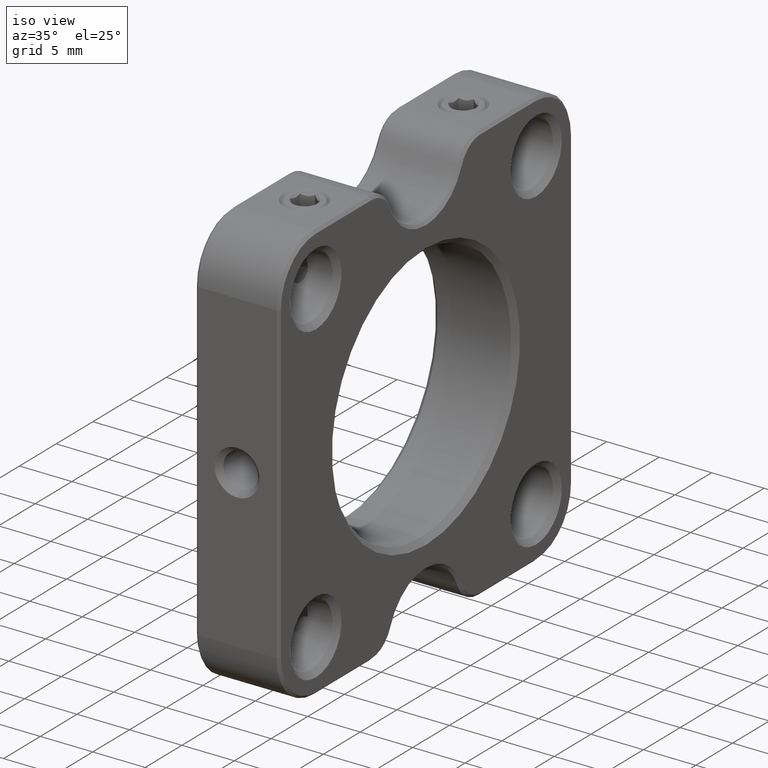
[diagram: clean part render]
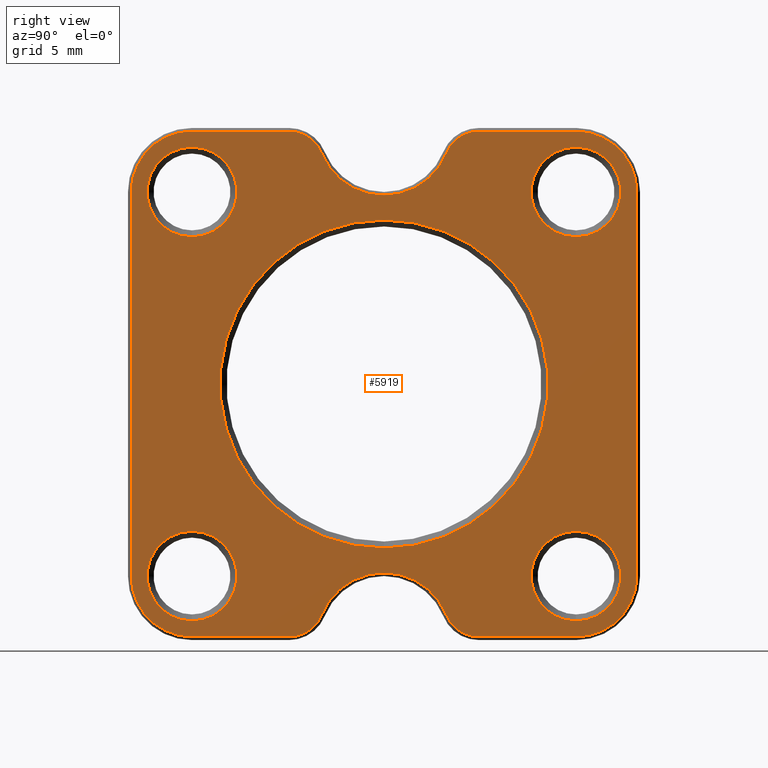
[diagram: tour spotlight — one face highlighted and labeled with its STEP entity id]
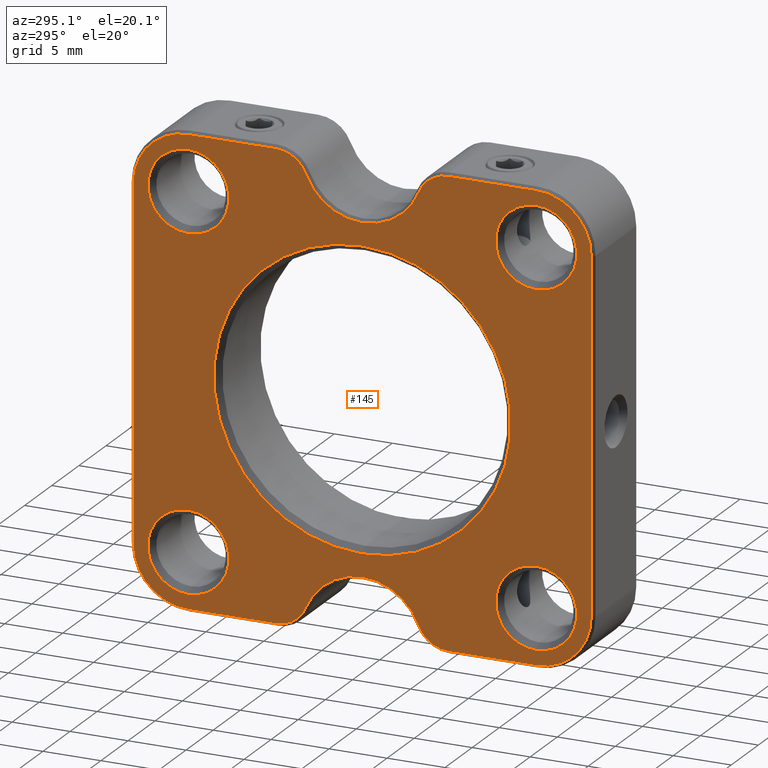
[diagram: tour spotlight — one face highlighted and labeled with its STEP entity id]
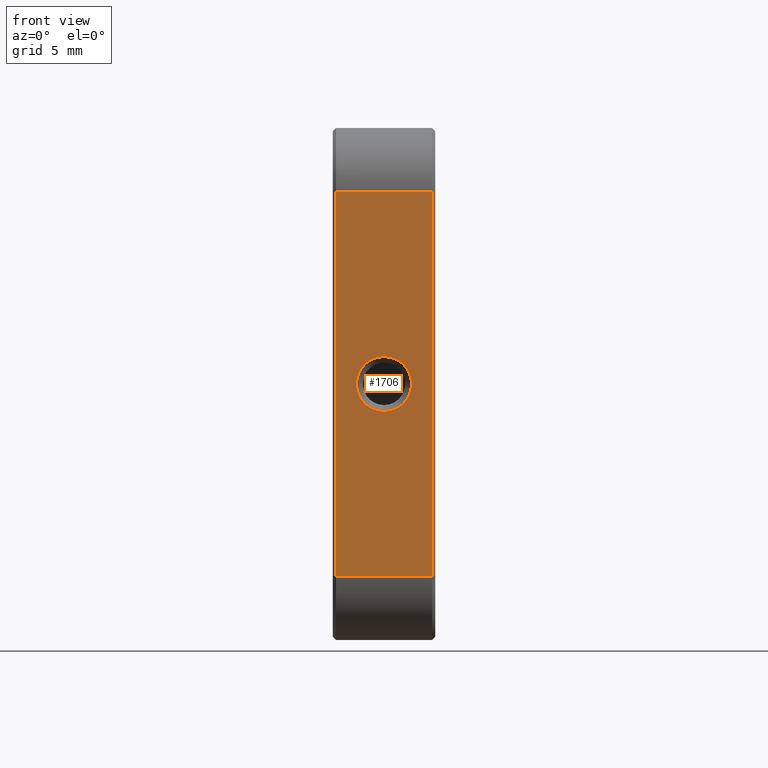
[diagram: tour spotlight — one face highlighted and labeled with its STEP entity id]
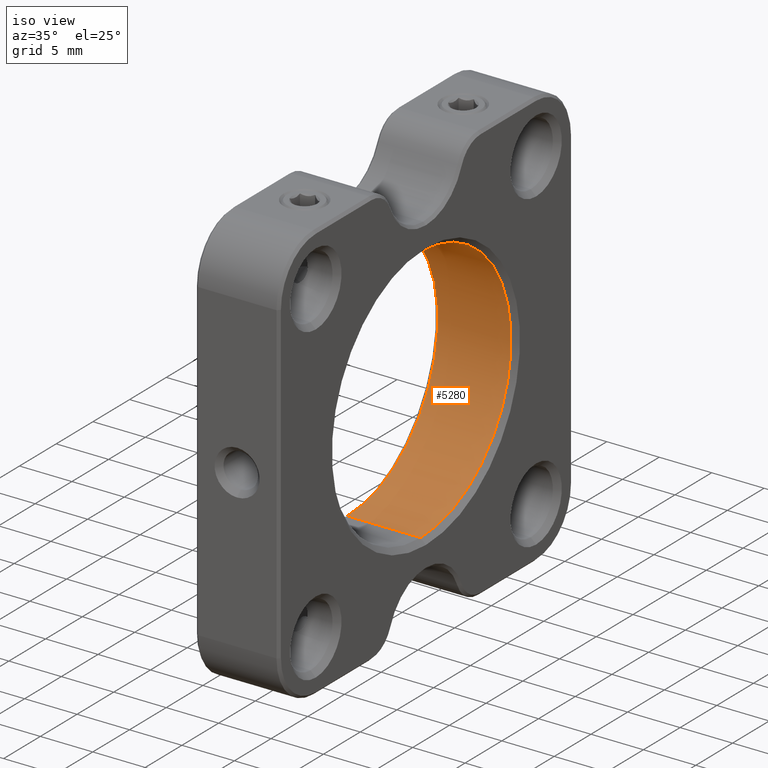
[diagram: tour spotlight — one face highlighted and labeled with its STEP entity id]
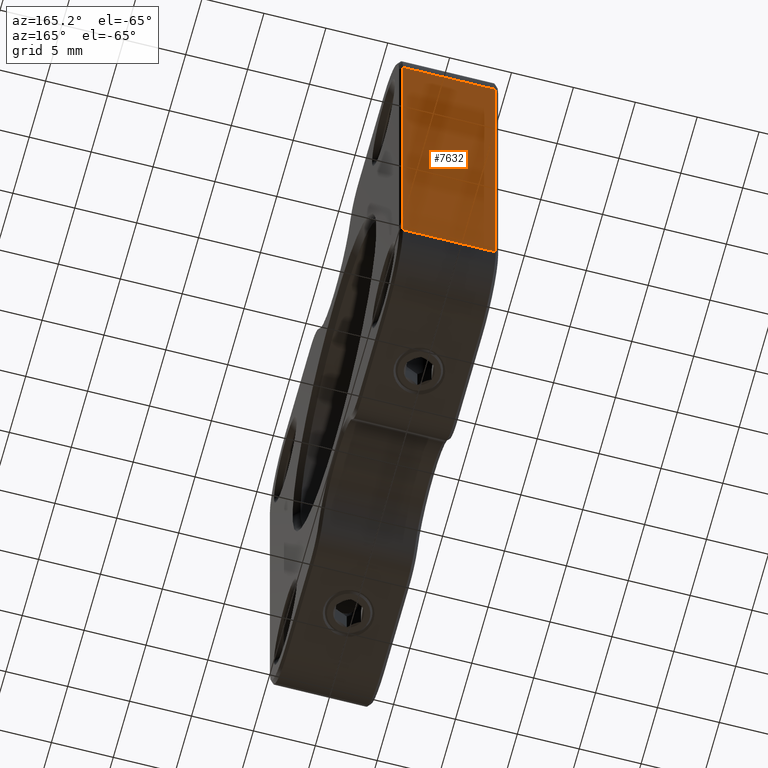
[diagram: tour spotlight — one face highlighted and labeled with its STEP entity id]
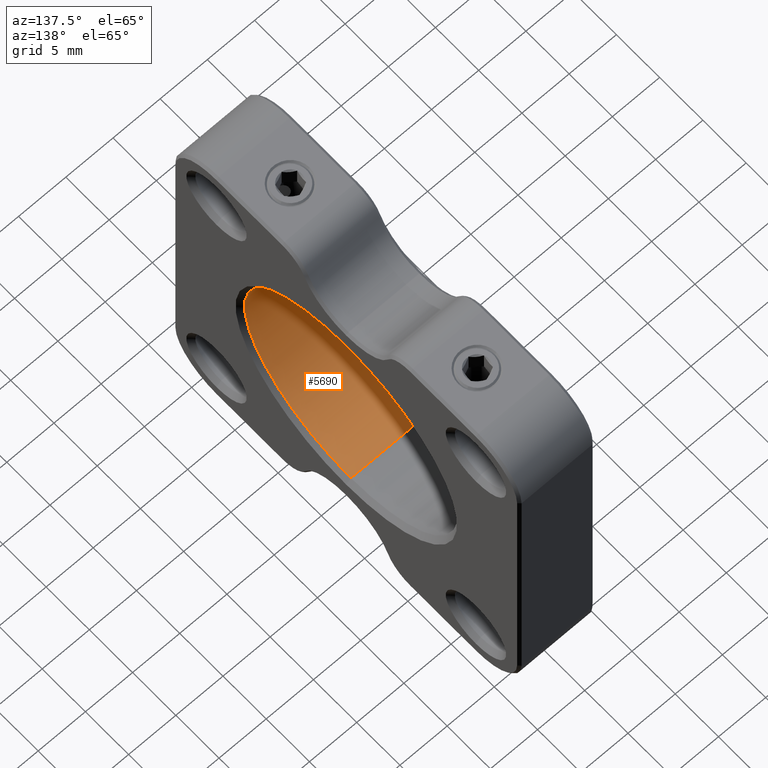
[diagram: tour spotlight — one face highlighted and labeled with its STEP entity id]
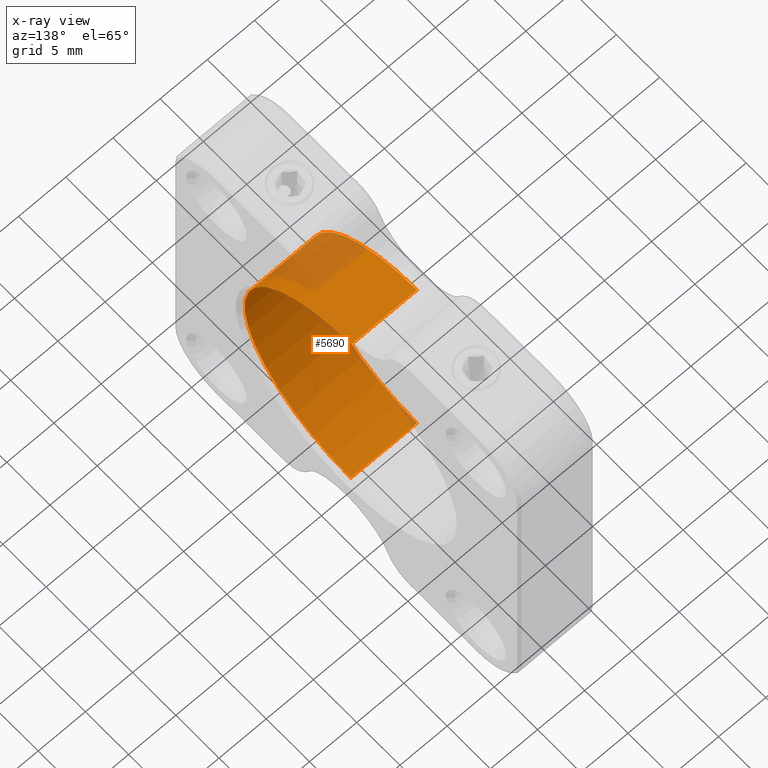
[diagram: x-ray of the same camera — body ghosted, this tour face saturated]
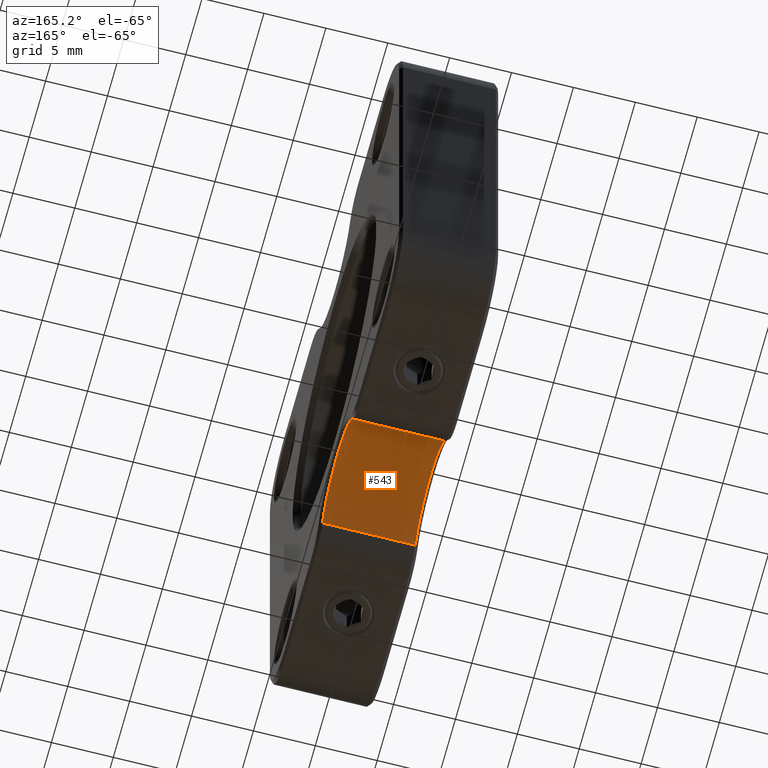
[diagram: tour spotlight — one face highlighted and labeled with its STEP entity id]
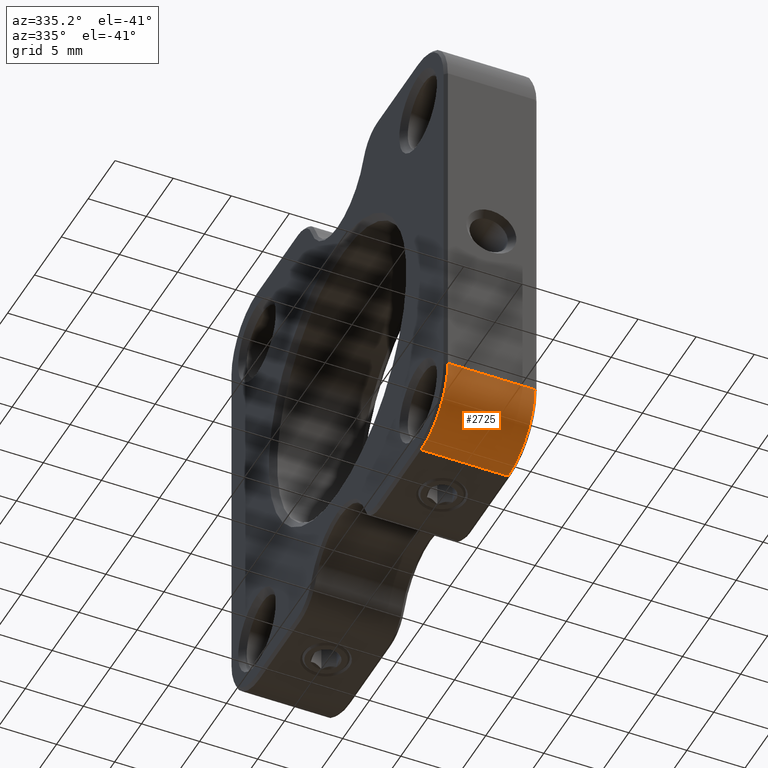
[diagram: tour spotlight — one face highlighted and labeled with its STEP entity id]
A machine part: a face-by-face anatomy tour. The part has 183 B-rep faces; the first image is the clean iso view, then the 8 largest visible faces are spotlighted one at a time (largest first), each with its STEP entity span.

Face 1 — right view, entity #5919. In plain terms, the highlighted planar face has unit normal (1, 0, 0).
Definition (entity closure, byte-faithful):
#1 = ORIENTED_EDGE ( 'NONE', *, *, #7457, .T. ) ;
#43 = VERTEX_POINT ( 'NONE', #1245 ) ;
#77 = EDGE_CURVE ( 'NONE', #43, #3384, #2464, .T. ) ;
#85 = CARTESIAN_POINT ( 'NONE',  ( -10.70960063692994879, 17.10930122340911197, 25.00000000000001421 ) ) ;
#107 = CARTESIAN_POINT ( 'NONE',  ( -10.70960063692994879, 2.109301223409106196, 60.00000000000001421 ) ) ;
#137 = AXIS2_PLACEMENT_3D ( 'NONE', #2385, #1075, #5454 ) ;
#210 = ORIENTED_EDGE ( 'NONE', *, *, #7149, .T. ) ;
#264 = EDGE_CURVE ( 'NONE', #989, #2061, #7231, .T. ) ;
#265 = LINE ( 'NONE', #687, #5618 ) ;
#297 = AXIS2_PLACEMENT_3D ( 'NONE', #336, #3417, #4606 ) ;
#303 = AXIS2_PLACEMENT_3D ( 'NONE', #2585, #3107, #2539 ) ;
#307 = CARTESIAN_POINT ( 'NONE',  ( -10.70960063692994879, -12.89069877659089691, 59.75000000000001421 ) ) ;
#336 = CARTESIAN_POINT ( 'NONE',  ( -10.70960063692994879, -12.89069877659088981, 25.00000000000001421 ) ) ;
#374 = EDGE_CURVE ( 'NONE', #6904, #3736, #7112, .T. ) ;
#402 = EDGE_CURVE ( 'NONE', #4097, #2131, #1087, .T. ) ;
#405 = ORIENTED_EDGE ( 'NONE', *, *, #1761, .T. ) ;
#416 = ORIENTED_EDGE ( 'NONE', *, *, #1147, .T. ) ;
#426 = DIRECTION ( 'NONE',  ( 0.000000000000000000, 0.000000000000000000, -1.000000000000000000 ) ) ;
#479 = VECTOR ( 'NONE', #2846, 1000.000000000000000 ) ;
#540 = CARTESIAN_POINT ( 'NONE',  ( -10.70960063692994879, -17.64069877659089158, 25.00000000000000355 ) ) ;
#563 = CARTESIAN_POINT ( 'NONE',  ( -10.70960063692994879, 9.525499710504769624, 57.00000000000000711 ) ) ;
#595 = CIRCLE ( 'NONE', #303, 3.500000000000010214 ) ;
#613 = CARTESIAN_POINT ( 'NONE',  ( -10.70960063692994879, 17.10930122340910486, 20.25000000000001066 ) ) ;
#640 = VERTEX_POINT ( 'NONE', #7557 ) ;
#678 = DIRECTION ( 'NONE',  ( 0.000000000000000000, 0.000000000000000000, -1.000000000000000000 ) ) ;
#687 = CARTESIAN_POINT ( 'NONE',  ( -10.70960063692994879, 9.525499710504767847, 59.75000000000001421 ) ) ;
#724 = DIRECTION ( 'NONE',  ( 0.000000000000000000, 1.000000000000000000, 8.673617379884035472E-17 ) ) ;
#735 = FACE_BOUND ( 'NONE', #1739, .T. ) ;
#786 = AXIS2_PLACEMENT_3D ( 'NONE', #3306, #4486, #1538 ) ;
#843 = AXIS2_PLACEMENT_3D ( 'NONE', #4584, #2100, #4569 ) ;
#848 = ORIENTED_EDGE ( 'NONE', *, *, #7377, .T. ) ;
#866 = CARTESIAN_POINT ( 'NONE',  ( -10.70960063692994879, -12.89069877659088981, 58.50000000000002132 ) ) ;
#929 = CARTESIAN_POINT ( 'NONE',  ( -10.70960063692994879, 9.525499710504767847, 59.75000000000001421 ) ) ;
#931 = CARTESIAN_POINT ( 'NONE',  ( -10.70960063692994879, 9.525499710504774953, 20.25000000000001066 ) ) ;
#941 = AXIS2_PLACEMENT_3D ( 'NONE', #6502, #6522, #5322 ) ;
#989 = VERTEX_POINT ( 'NONE', #4979 ) ;
#1019 = DIRECTION ( 'NONE',  ( 0.000000000000000000, 0.000000000000000000, -1.000000000000000000 ) ) ;
#1056 = ORIENTED_EDGE ( 'NONE', *, *, #6642, .T. ) ;
#1075 = DIRECTION ( 'NONE',  ( 1.000000000000000000, 0.000000000000000000, 0.000000000000000000 ) ) ;
#1087 = CIRCLE ( 'NONE', #137, 4.750000000000004441 ) ;
#1101 = DIRECTION ( 'NONE',  ( -1.000000000000000000, -0.000000000000000000, -0.000000000000000000 ) ) ;
#1112 = DIRECTION ( 'NONE',  ( 0.000000000000000000, 0.000000000000000000, -1.000000000000000000 ) ) ;
#1143 = CARTESIAN_POINT ( 'NONE',  ( -10.70960063692994879, -5.306897263686554567, 59.75000000000001421 ) ) ;
#1147 = EDGE_CURVE ( 'NONE', #3384, #43, #4077, .T. ) ;
#1169 = CARTESIAN_POINT ( 'NONE',  ( -10.70960063692994879, -5.306897263686560784, 23.00000000000000711 ) ) ;
#1208 = CARTESIAN_POINT ( 'NONE',  ( -10.70960063692994879, 2.109301223409106196, 54.75000000000001421 ) ) ;
#1215 = ORIENTED_EDGE ( 'NONE', *, *, #2801, .T. ) ;
#1245 = CARTESIAN_POINT ( 'NONE',  ( -10.70960063692994879, 17.10930122340911197, 28.50000000000002487 ) ) ;
#1275 = CIRCLE ( 'NONE', #786, 3.499999999999989342 ) ;
#1282 = ORIENTED_EDGE ( 'NONE', *, *, #2391, .T. ) ;
#1284 = EDGE_CURVE ( 'NONE', #6444, #4435, #4950, .T. ) ;
#1312 = CARTESIAN_POINT ( 'NONE',  ( -10.70960063692994879, -5.306897263686561672, 20.25000000000000711 ) ) ;
#1385 = AXIS2_PLACEMENT_3D ( 'NONE', #3572, #3053, #4282 ) ;
#1389 = FACE_BOUND ( 'NONE', #3066, .T. ) ;
#1399 = CARTESIAN_POINT ( 'NONE',  ( -10.70960063692994879, -12.89069877659089691, 25.00000000000000711 ) ) ;
#1494 = EDGE_CURVE ( 'NONE', #2131, #6321, #1863, .T. ) ;
#1518 = DIRECTION ( 'NONE',  ( 0.000000000000000000, 0.000000000000000000, -1.000000000000000000 ) ) ;
#1538 = DIRECTION ( 'NONE',  ( 0.000000000000000000, 0.000000000000000000, -1.000000000000000000 ) ) ;
#1567 = FACE_BOUND ( 'NONE', #4509, .T. ) ;
#1610 = AXIS2_PLACEMENT_3D ( 'NONE', #6057, #3624, #2406 ) ;
#1678 = CIRCLE ( 'NONE', #1610, 2.750000000000002665 ) ;
#1703 = EDGE_CURVE ( 'NONE', #4435, #6444, #1275, .T. ) ;
#1723 = CARTESIAN_POINT ( 'NONE',  ( -10.70960063692994879, 2.109301223409109749, 40.00000000000001421 ) ) ;
#1729 = ORIENTED_EDGE ( 'NONE', *, *, #7850, .T. ) ;
#1739 = EDGE_LOOP ( 'NONE', ( #5174, #7175 ) ) ;
#1761 = EDGE_CURVE ( 'NONE', #6978, #6689, #4499, .T. ) ;
#1769 = FACE_OUTER_BOUND ( 'NONE', #6446, .T. ) ;
#1863 = LINE ( 'NONE', #540, #6924 ) ;
#1869 = AXIS2_PLACEMENT_3D ( 'NONE', #5190, #2144, #7724 ) ;
#1947 = AXIS2_PLACEMENT_3D ( 'NONE', #3584, #4295, #678 ) ;
#1989 = DIRECTION ( 'NONE',  ( 1.000000000000000000, 0.000000000000000000, 0.000000000000000000 ) ) ;
#2020 = CARTESIAN_POINT ( 'NONE',  ( -10.70960063692994879, 2.109301223409111081, 52.80500000000002814 ) ) ;
#2061 = VERTEX_POINT ( 'NONE', #4757 ) ;
#2100 = DIRECTION ( 'NONE',  ( -1.000000000000000000, -0.000000000000000000, -0.000000000000000000 ) ) ;
#2131 = VERTEX_POINT ( 'NONE', #2541 ) ;
#2144 = DIRECTION ( 'NONE',  ( -1.000000000000000000, -0.000000000000000000, -0.000000000000000000 ) ) ;
#2297 = CARTESIAN_POINT ( 'NONE',  ( -10.70960063692994879, -17.64069877659089869, 25.00000000000000355 ) ) ;
#2385 = CARTESIAN_POINT ( 'NONE',  ( -10.70960063692994879, -12.89069877659089336, 55.00000000000000711 ) ) ;
#2391 = EDGE_CURVE ( 'NONE', #2061, #989, #4824, .T. ) ;
#2406 = DIRECTION ( 'NONE',  ( 0.000000000000000000, 0.000000000000000000, -1.000000000000000000 ) ) ;
#2464 = CIRCLE ( 'NONE', #1385, 3.500000000000010214 ) ;
#2475 = DIRECTION ( 'NONE',  ( 1.000000000000000000, 0.000000000000000000, 0.000000000000000000 ) ) ;
#2494 = VERTEX_POINT ( 'NONE', #3939 ) ;
#2516 = VERTEX_POINT ( 'NONE', #3321 ) ;
#2529 = CIRCLE ( 'NONE', #6785, 4.750000000000000888 ) ;
#2539 = DIRECTION ( 'NONE',  ( 0.000000000000000000, 0.000000000000000000, -1.000000000000000000 ) ) ;
#2541 = CARTESIAN_POINT ( 'NONE',  ( -10.70960063692994879, -17.64069877659089158, 55.00000000000000711 ) ) ;
#2585 = CARTESIAN_POINT ( 'NONE',  ( -10.70960063692994879, -12.89069877659088981, 55.00000000000001421 ) ) ;
#2603 = VECTOR ( 'NONE', #724, 1000.000000000000000 ) ;
#2633 = ORIENTED_EDGE ( 'NONE', *, *, #77, .T. ) ;
#2663 = EDGE_CURVE ( 'NONE', #5377, #4519, #3863, .T. ) ;
#2667 = VERTEX_POINT ( 'NONE', #6125 ) ;
#2719 = DIRECTION ( 'NONE',  ( 0.000000000000000000, 0.000000000000000000, -1.000000000000000000 ) ) ;
#2801 = EDGE_CURVE ( 'NONE', #2494, #5099, #6731, .T. ) ;
#2846 = DIRECTION ( 'NONE',  ( 0.000000000000000000, -1.000000000000000000, -8.673617379884035472E-17 ) ) ;
#2848 = EDGE_CURVE ( 'NONE', #7729, #6771, #7317, .T. ) ;
#2901 = DIRECTION ( 'NONE',  ( 1.000000000000000000, 0.000000000000000000, 0.000000000000000000 ) ) ;
#3053 = DIRECTION ( 'NONE',  ( -1.000000000000000000, -0.000000000000000000, -0.000000000000000000 ) ) ;
#3066 = EDGE_LOOP ( 'NONE', ( #1282, #5388 ) ) ;
#3098 = DIRECTION ( 'NONE',  ( 0.000000000000000000, -9.086646778926137095E-16, -1.000000000000000000 ) ) ;
#3107 = DIRECTION ( 'NONE',  ( -1.000000000000000000, -0.000000000000000000, -0.000000000000000000 ) ) ;
#3187 = FACE_BOUND ( 'NONE', #6460, .T. ) ;
#3201 = CARTESIAN_POINT ( 'NONE',  ( -10.70960063692994879, 2.109301223409109749, 27.19500000000001094 ) ) ;
#3208 = EDGE_CURVE ( 'NONE', #5304, #4097, #5338, .T. ) ;
#3213 = VERTEX_POINT ( 'NONE', #931 ) ;
#3306 = CARTESIAN_POINT ( 'NONE',  ( -10.70960063692994879, -12.89069877659088981, 25.00000000000001421 ) ) ;
#3321 = CARTESIAN_POINT ( 'NONE',  ( -10.70960063692994879, -12.89069877659089691, 20.25000000000001066 ) ) ;
#3327 = DIRECTION ( 'NONE',  ( -1.000000000000000000, -0.000000000000000000, -0.000000000000000000 ) ) ;
#3329 = EDGE_CURVE ( 'NONE', #6689, #6978, #7445, .T. ) ;
#3367 = CARTESIAN_POINT ( 'NONE',  ( -10.70960063692994879, 17.10930122340910486, 25.00000000000000711 ) ) ;
#3384 = VERTEX_POINT ( 'NONE', #3930 ) ;
#3417 = DIRECTION ( 'NONE',  ( -1.000000000000000000, -0.000000000000000000, -0.000000000000000000 ) ) ;
#3424 = PLANE ( 'NONE',  #6632 ) ;
#3442 = AXIS2_PLACEMENT_3D ( 'NONE', #6872, #7649, #2719 ) ;
#3459 = ORIENTED_EDGE ( 'NONE', *, *, #4576, .T. ) ;
#3461 = ORIENTED_EDGE ( 'NONE', *, *, #2848, .T. ) ;
#3472 = CARTESIAN_POINT ( 'NONE',  ( -10.70960063692994879, 2.109301223409106196, 20.00000000000001776 ) ) ;
#3474 = AXIS2_PLACEMENT_3D ( 'NONE', #85, #4361, #4993 ) ;
#3503 = EDGE_CURVE ( 'NONE', #7496, #3213, #6791, .T. ) ;
#3536 = CARTESIAN_POINT ( 'NONE',  ( -10.70960063692994879, -12.89069877659088981, 21.50000000000002487 ) ) ;
#3568 = FACE_BOUND ( 'NONE', #4213, .T. ) ;
#3572 = CARTESIAN_POINT ( 'NONE',  ( -10.70960063692994879, 17.10930122340911197, 25.00000000000001421 ) ) ;
#3584 = CARTESIAN_POINT ( 'NONE',  ( -10.70960063692994879, 17.10930122340911197, 55.00000000000001421 ) ) ;
#3601 = CARTESIAN_POINT ( 'NONE',  ( -10.70960063692994879, 17.10930122340910486, 20.25000000000000711 ) ) ;
#3624 = DIRECTION ( 'NONE',  ( 1.000000000000000000, 0.000000000000000000, 0.000000000000000000 ) ) ;
#3736 = VERTEX_POINT ( 'NONE', #6196 ) ;
#3765 = CARTESIAN_POINT ( 'NONE',  ( -10.70960063692994879, 17.10930122340910486, 59.75000000000001421 ) ) ;
#3800 = AXIS2_PLACEMENT_3D ( 'NONE', #107, #6255, #3098 ) ;
#3862 = ORIENTED_EDGE ( 'NONE', *, *, #2663, .T. ) ;
#3863 = CIRCLE ( 'NONE', #5855, 2.749999999999999112 ) ;
#3898 = CARTESIAN_POINT ( 'NONE',  ( -10.70960063692994879, -12.89069877659088981, 28.50000000000000355 ) ) ;
#3930 = CARTESIAN_POINT ( 'NONE',  ( -10.70960063692994879, 17.10930122340911197, 21.50000000000000355 ) ) ;
#3939 = CARTESIAN_POINT ( 'NONE',  ( -10.70960063692994879, -12.89069877659088981, 51.50000000000000711 ) ) ;
#4039 = CARTESIAN_POINT ( 'NONE',  ( -10.70960063692994879, 9.525499710504773176, 23.00000000000000711 ) ) ;
#4077 = CIRCLE ( 'NONE', #3474, 3.500000000000010214 ) ;
#4097 = VERTEX_POINT ( 'NONE', #6757 ) ;
#4140 = DIRECTION ( 'NONE',  ( -1.000000000000000000, -0.000000000000000000, -0.000000000000000000 ) ) ;
#4213 = EDGE_LOOP ( 'NONE', ( #1215, #7527 ) ) ;
#4270 = EDGE_CURVE ( 'NONE', #2667, #6904, #7304, .T. ) ;
#4282 = DIRECTION ( 'NONE',  ( 0.000000000000000000, 0.000000000000000000, -1.000000000000000000 ) ) ;
#4295 = DIRECTION ( 'NONE',  ( -1.000000000000000000, -0.000000000000000000, -0.000000000000000000 ) ) ;
#4345 = CARTESIAN_POINT ( 'NONE',  ( -10.70960063692994879, 21.85930122340910842, 55.00000000000000711 ) ) ;
#4361 = DIRECTION ( 'NONE',  ( -1.000000000000000000, -0.000000000000000000, -0.000000000000000000 ) ) ;
#4364 = ORIENTED_EDGE ( 'NONE', *, *, #6675, .T. ) ;
#4435 = VERTEX_POINT ( 'NONE', #3898 ) ;
#4486 = DIRECTION ( 'NONE',  ( -1.000000000000000000, -0.000000000000000000, -0.000000000000000000 ) ) ;
#4499 = CIRCLE ( 'NONE', #5390, 12.80500000000000327 ) ;
#4509 = EDGE_LOOP ( 'NONE', ( #5470, #405 ) ) ;
#4519 = VERTEX_POINT ( 'NONE', #5270 ) ;
#4536 = VECTOR ( 'NONE', #4842, 1000.000000000000000 ) ;
#4551 = AXIS2_PLACEMENT_3D ( 'NONE', #3367, #6404, #426 ) ;
#4569 = DIRECTION ( 'NONE',  ( 0.000000000000000000, 0.000000000000000000, -1.000000000000000000 ) ) ;
#4576 = EDGE_CURVE ( 'NONE', #2516, #5377, #6178, .T. ) ;
#4584 = CARTESIAN_POINT ( 'NONE',  ( -10.70960063692994879, 17.10930122340911197, 55.00000000000001421 ) ) ;
#4606 = DIRECTION ( 'NONE',  ( 0.000000000000000000, 0.000000000000000000, -1.000000000000000000 ) ) ;
#4620 = ORIENTED_EDGE ( 'NONE', *, *, #3503, .T. ) ;
#4736 = CARTESIAN_POINT ( 'NONE',  ( -10.70960063692994879, -5.306897263686561672, 20.25000000000001066 ) ) ;
#4756 = AXIS2_PLACEMENT_3D ( 'NONE', #3472, #1101, #1019 ) ;
#4757 = CARTESIAN_POINT ( 'NONE',  ( -10.70960063692994879, 17.10930122340911197, 51.50000000000000711 ) ) ;
#4776 = DIRECTION ( 'NONE',  ( 0.000000000000000000, 0.000000000000000000, -1.000000000000000000 ) ) ;
#4794 = CIRCLE ( 'NONE', #6801, 2.750000000000002665 ) ;
#4822 = DIRECTION ( 'NONE',  ( 1.000000000000000000, 0.000000000000000000, 0.000000000000000000 ) ) ;
#4824 = CIRCLE ( 'NONE', #843, 3.500000000000010214 ) ;
#4842 = DIRECTION ( 'NONE',  ( 0.000000000000000000, 1.000000000000000000, 8.673617379884035472E-17 ) ) ;
#4950 = CIRCLE ( 'NONE', #297, 3.499999999999989342 ) ;
#4979 = CARTESIAN_POINT ( 'NONE',  ( -10.70960063692994879, 17.10930122340911197, 58.50000000000002132 ) ) ;
#4981 = ORIENTED_EDGE ( 'NONE', *, *, #7745, .T. ) ;
#4993 = DIRECTION ( 'NONE',  ( 0.000000000000000000, 0.000000000000000000, -1.000000000000000000 ) ) ;
#5099 = VERTEX_POINT ( 'NONE', #866 ) ;
#5174 = ORIENTED_EDGE ( 'NONE', *, *, #1284, .T. ) ;
#5189 = CARTESIAN_POINT ( 'NONE',  ( -10.70960063692994879, 2.109301223409109749, 40.00000000000001421 ) ) ;
#5190 = CARTESIAN_POINT ( 'NONE',  ( -10.70960063692994879, -12.89069877659088981, 55.00000000000001421 ) ) ;
#5270 = CARTESIAN_POINT ( 'NONE',  ( -10.70960063692994879, -2.757579033747424635, 21.96875000000001421 ) ) ;
#5304 = VERTEX_POINT ( 'NONE', #1143 ) ;
#5322 = DIRECTION ( 'NONE',  ( 0.000000000000000000, 0.000000000000000000, -1.000000000000000000 ) ) ;
#5338 = LINE ( 'NONE', #307, #479 ) ;
#5346 = CARTESIAN_POINT ( 'NONE',  ( -10.70960063692994879, 2.109301223409106196, 60.00000000000001421 ) ) ;
#5363 = ORIENTED_EDGE ( 'NONE', *, *, #402, .T. ) ;
#5377 = VERTEX_POINT ( 'NONE', #1312 ) ;
#5388 = ORIENTED_EDGE ( 'NONE', *, *, #264, .T. ) ;
#5390 = AXIS2_PLACEMENT_3D ( 'NONE', #5189, #3327, #1518 ) ;
#5414 = ORIENTED_EDGE ( 'NONE', *, *, #1494, .T. ) ;
#5454 = DIRECTION ( 'NONE',  ( 0.000000000000000000, 0.000000000000000000, -1.000000000000000000 ) ) ;
#5470 = ORIENTED_EDGE ( 'NONE', *, *, #3329, .T. ) ;
#5587 = LINE ( 'NONE', #4345, #7323 ) ;
#5618 = VECTOR ( 'NONE', #7867, 1000.000000000000000 ) ;
#5737 = ORIENTED_EDGE ( 'NONE', *, *, #4270, .T. ) ;
#5763 = AXIS2_PLACEMENT_3D ( 'NONE', #4039, #7776, #7051 ) ;
#5855 = AXIS2_PLACEMENT_3D ( 'NONE', #1169, #2475, #7905 ) ;
#5919 = ADVANCED_FACE ( 'NONE', ( #3187, #735, #3568, #1389, #1769, #1567 ), #3424, .T. ) ;
#5956 = ORIENTED_EDGE ( 'NONE', *, *, #3208, .T. ) ;
#5975 = DIRECTION ( 'NONE',  ( 0.000000000000000000, 0.000000000000000000, -1.000000000000000000 ) ) ;
#6045 = AXIS2_PLACEMENT_3D ( 'NONE', #5346, #4140, #7948 ) ;
#6057 = CARTESIAN_POINT ( 'NONE',  ( -10.70960063692994879, -5.306897263686555455, 57.00000000000000711 ) ) ;
#6125 = CARTESIAN_POINT ( 'NONE',  ( -10.70960063692994879, 6.976181480565634807, 58.03125000000000711 ) ) ;
#6178 = LINE ( 'NONE', #4736, #4536 ) ;
#6196 = CARTESIAN_POINT ( 'NONE',  ( -10.70960063692994879, -2.757579033747421970, 58.03125000000000711 ) ) ;
#6213 = CIRCLE ( 'NONE', #4551, 4.750000000000000888 ) ;
#6255 = DIRECTION ( 'NONE',  ( -1.000000000000000000, -0.000000000000000000, -0.000000000000000000 ) ) ;
#6321 = VERTEX_POINT ( 'NONE', #2297 ) ;
#6404 = DIRECTION ( 'NONE',  ( 1.000000000000000000, 0.000000000000000000, 0.000000000000000000 ) ) ;
#6432 = EDGE_CURVE ( 'NONE', #3736, #5304, #1678, .T. ) ;
#6442 = VERTEX_POINT ( 'NONE', #3601 ) ;
#6444 = VERTEX_POINT ( 'NONE', #3536 ) ;
#6446 = EDGE_LOOP ( 'NONE', ( #5363, #5414, #4364, #3459, #3862, #1729, #4620, #210, #848, #1056, #3461, #1, #4981, #5737, #6654, #7383, #5956 ) ) ;
#6460 = EDGE_LOOP ( 'NONE', ( #416, #2633 ) ) ;
#6502 = CARTESIAN_POINT ( 'NONE',  ( -10.70960063692994879, 17.10930122340910486, 55.00000000000000711 ) ) ;
#6522 = DIRECTION ( 'NONE',  ( 1.000000000000000000, 0.000000000000000000, 0.000000000000000000 ) ) ;
#6583 = CARTESIAN_POINT ( 'NONE',  ( -10.70960063692994879, 21.85930122340910842, 55.00000000000000711 ) ) ;
#6632 = AXIS2_PLACEMENT_3D ( 'NONE', #1723, #2901, #4776 ) ;
#6642 = EDGE_CURVE ( 'NONE', #640, #7729, #5587, .T. ) ;
#6654 = ORIENTED_EDGE ( 'NONE', *, *, #374, .T. ) ;
#6675 = EDGE_CURVE ( 'NONE', #6321, #2516, #2529, .T. ) ;
#6689 = VERTEX_POINT ( 'NONE', #3201 ) ;
#6731 = CIRCLE ( 'NONE', #1869, 3.500000000000010214 ) ;
#6740 = DIRECTION ( 'NONE',  ( 0.000000000000000000, 0.000000000000000000, 1.000000000000000000 ) ) ;
#6757 = CARTESIAN_POINT ( 'NONE',  ( -10.70960063692994879, -12.89069877659089691, 59.75000000000001421 ) ) ;
#6771 = VERTEX_POINT ( 'NONE', #3765 ) ;
#6785 = AXIS2_PLACEMENT_3D ( 'NONE', #1399, #1989, #7501 ) ;
#6791 = CIRCLE ( 'NONE', #5763, 2.749999999999999112 ) ;
#6801 = AXIS2_PLACEMENT_3D ( 'NONE', #563, #4822, #5975 ) ;
#6872 = CARTESIAN_POINT ( 'NONE',  ( -10.70960063692994879, 2.109301223409109749, 40.00000000000001421 ) ) ;
#6904 = VERTEX_POINT ( 'NONE', #1208 ) ;
#6924 = VECTOR ( 'NONE', #1112, 1000.000000000000000 ) ;
#6978 = VERTEX_POINT ( 'NONE', #2020 ) ;
#6984 = LINE ( 'NONE', #613, #2603 ) ;
#7051 = DIRECTION ( 'NONE',  ( 0.000000000000000000, 0.000000000000000000, -1.000000000000000000 ) ) ;
#7112 = CIRCLE ( 'NONE', #6045, 5.249999999999997335 ) ;
#7149 = EDGE_CURVE ( 'NONE', #3213, #6442, #6984, .T. ) ;
#7175 = ORIENTED_EDGE ( 'NONE', *, *, #1703, .T. ) ;
#7231 = CIRCLE ( 'NONE', #1947, 3.500000000000010214 ) ;
#7304 = CIRCLE ( 'NONE', #3800, 5.249999999999997335 ) ;
#7317 = CIRCLE ( 'NONE', #941, 4.750000000000004441 ) ;
#7323 = VECTOR ( 'NONE', #6740, 1000.000000000000000 ) ;
#7377 = EDGE_CURVE ( 'NONE', #6442, #640, #6213, .T. ) ;
#7382 = CIRCLE ( 'NONE', #4756, 5.250000000000000888 ) ;
#7383 = ORIENTED_EDGE ( 'NONE', *, *, #6432, .T. ) ;
#7413 = VERTEX_POINT ( 'NONE', #929 ) ;
#7445 = CIRCLE ( 'NONE', #3442, 12.80500000000000327 ) ;
#7457 = EDGE_CURVE ( 'NONE', #6771, #7413, #265, .T. ) ;
#7496 = VERTEX_POINT ( 'NONE', #7789 ) ;
#7501 = DIRECTION ( 'NONE',  ( 0.000000000000000000, 0.000000000000000000, -1.000000000000000000 ) ) ;
#7527 = ORIENTED_EDGE ( 'NONE', *, *, #7896, .T. ) ;
#7557 = CARTESIAN_POINT ( 'NONE',  ( -10.70960063692994879, 21.85930122340910842, 25.00000000000000711 ) ) ;
#7649 = DIRECTION ( 'NONE',  ( -1.000000000000000000, -0.000000000000000000, -0.000000000000000000 ) ) ;
#7724 = DIRECTION ( 'NONE',  ( 0.000000000000000000, 0.000000000000000000, -1.000000000000000000 ) ) ;
#7729 = VERTEX_POINT ( 'NONE', #6583 ) ;
#7745 = EDGE_CURVE ( 'NONE', #7413, #2667, #4794, .T. ) ;
#7776 = DIRECTION ( 'NONE',  ( 1.000000000000000000, 0.000000000000000000, 0.000000000000000000 ) ) ;
#7789 = CARTESIAN_POINT ( 'NONE',  ( -10.70960063692994879, 6.976181480565638360, 21.96875000000001421 ) ) ;
#7850 = EDGE_CURVE ( 'NONE', #4519, #7496, #7382, .T. ) ;
#7867 = DIRECTION ( 'NONE',  ( 0.000000000000000000, -1.000000000000000000, -8.673617379884035472E-17 ) ) ;
#7896 = EDGE_CURVE ( 'NONE', #5099, #2494, #595, .T. ) ;
#7905 = DIRECTION ( 'NONE',  ( 0.000000000000000000, 0.000000000000000000, -1.000000000000000000 ) ) ;
#7948 = DIRECTION ( 'NONE',  ( 0.000000000000000000, 0.000000000000000000, -1.000000000000000000 ) ) ;

Face 2 — auxiliary view, entity #145. In plain terms, the highlighted planar face has unit normal (1, 0, 0).
Definition (entity closure, byte-faithful):
#103 = LINE ( 'NONE', #1511, #4798 ) ;
#135 = EDGE_CURVE ( 'NONE', #359, #4829, #3888, .T. ) ;
#145 = ADVANCED_FACE ( 'NONE', ( #841, #461, #1992, #7348, #251, #6481 ), #4859, .F. ) ;
#171 = EDGE_CURVE ( 'NONE', #6902, #1530, #7836, .T. ) ;
#251 = FACE_OUTER_BOUND ( 'NONE', #3744, .T. ) ;
#277 = AXIS2_PLACEMENT_3D ( 'NONE', #5216, #1843, #4959 ) ;
#342 = CARTESIAN_POINT ( 'NONE',  ( -18.70960063692994879, -12.89069877659088981, 55.00000000000001421 ) ) ;
#359 = VERTEX_POINT ( 'NONE', #7057 ) ;
#367 = CARTESIAN_POINT ( 'NONE',  ( -18.70960063692994879, -5.306897263686561672, 20.25000000000000711 ) ) ;
#389 = EDGE_CURVE ( 'NONE', #6499, #6623, #6920, .T. ) ;
#407 = DIRECTION ( 'NONE',  ( 0.000000000000000000, 0.000000000000000000, -1.000000000000000000 ) ) ;
#415 = VERTEX_POINT ( 'NONE', #6638 ) ;
#417 = DIRECTION ( 'NONE',  ( 0.000000000000000000, 0.000000000000000000, -1.000000000000000000 ) ) ;
#461 = FACE_BOUND ( 'NONE', #6433, .T. ) ;
#470 = ORIENTED_EDGE ( 'NONE', *, *, #4489, .T. ) ;
#475 = AXIS2_PLACEMENT_3D ( 'NONE', #7423, #3684, #3761 ) ;
#482 = AXIS2_PLACEMENT_3D ( 'NONE', #2807, #5930, #407 ) ;
#486 = CIRCLE ( 'NONE', #475, 12.80499999999999972 ) ;
#520 = DIRECTION ( 'NONE',  ( 1.000000000000000000, 0.000000000000000000, 0.000000000000000000 ) ) ;
#537 = ORIENTED_EDGE ( 'NONE', *, *, #2495, .T. ) ;
#546 = DIRECTION ( 'NONE',  ( 0.000000000000000000, 0.000000000000000000, -1.000000000000000000 ) ) ;
#553 = ORIENTED_EDGE ( 'NONE', *, *, #171, .T. ) ;
#579 = DIRECTION ( 'NONE',  ( 0.000000000000000000, 0.000000000000000000, -1.000000000000000000 ) ) ;
#634 = CARTESIAN_POINT ( 'NONE',  ( -18.70960063692994879, -12.89069877659089691, 59.75000000000001421 ) ) ;
#700 = CIRCLE ( 'NONE', #953, 2.749999999999999112 ) ;
#841 = FACE_BOUND ( 'NONE', #6508, .T. ) ;
#940 = EDGE_CURVE ( 'NONE', #2202, #3182, #486, .T. ) ;
#953 = AXIS2_PLACEMENT_3D ( 'NONE', #5828, #5272, #4078 ) ;
#991 = AXIS2_PLACEMENT_3D ( 'NONE', #7463, #3196, #3791 ) ;
#1026 = VECTOR ( 'NONE', #2565, 1000.000000000000000 ) ;
#1090 = EDGE_CURVE ( 'NONE', #2052, #2296, #3119, .T. ) ;
#1107 = AXIS2_PLACEMENT_3D ( 'NONE', #2242, #4636, #417 ) ;
#1192 = CIRCLE ( 'NONE', #1972, 3.499999999999996003 ) ;
#1220 = LINE ( 'NONE', #4062, #6103 ) ;
#1221 = DIRECTION ( 'NONE',  ( 0.000000000000000000, 0.000000000000000000, -1.000000000000000000 ) ) ;
#1319 = ORIENTED_EDGE ( 'NONE', *, *, #6548, .T. ) ;
#1334 = DIRECTION ( 'NONE',  ( 0.000000000000000000, 0.000000000000000000, -1.000000000000000000 ) ) ;
#1347 = VERTEX_POINT ( 'NONE', #1524 ) ;
#1354 = VERTEX_POINT ( 'NONE', #7652 ) ;
#1390 = ORIENTED_EDGE ( 'NONE', *, *, #4588, .T. ) ;
#1468 = VERTEX_POINT ( 'NONE', #6611 ) ;
#1511 = CARTESIAN_POINT ( 'NONE',  ( -18.70960063692994879, -17.64069877659089158, 40.00000000000001421 ) ) ;
#1520 = CARTESIAN_POINT ( 'NONE',  ( -18.70960063692994879, 17.10930122340911197, 21.50000000000000355 ) ) ;
#1524 = CARTESIAN_POINT ( 'NONE',  ( -18.70960063692994879, 21.85930122340910842, 25.00000000000000711 ) ) ;
#1528 = DIRECTION ( 'NONE',  ( -1.000000000000000000, -0.000000000000000000, -0.000000000000000000 ) ) ;
#1530 = VERTEX_POINT ( 'NONE', #1907 ) ;
#1623 = CARTESIAN_POINT ( 'NONE',  ( -18.70960063692994879, 2.109301223409106196, 20.00000000000001776 ) ) ;
#1672 = ORIENTED_EDGE ( 'NONE', *, *, #1090, .T. ) ;
#1699 = CIRCLE ( 'NONE', #7192, 3.500000000000010214 ) ;
#1712 = ORIENTED_EDGE ( 'NONE', *, *, #2258, .T. ) ;
#1722 = DIRECTION ( 'NONE',  ( 0.000000000000000000, 1.000000000000000000, 8.673617379884035472E-17 ) ) ;
#1724 = CIRCLE ( 'NONE', #1107, 2.749999999999999112 ) ;
#1751 = ORIENTED_EDGE ( 'NONE', *, *, #3807, .T. ) ;
#1778 = DIRECTION ( 'NONE',  ( 0.000000000000000000, 0.000000000000000000, -1.000000000000000000 ) ) ;
#1814 = CARTESIAN_POINT ( 'NONE',  ( -18.70960063692994879, 2.109301223409109749, 40.00000000000001421 ) ) ;
#1843 = DIRECTION ( 'NONE',  ( 1.000000000000000000, 0.000000000000000000, 0.000000000000000000 ) ) ;
#1881 = EDGE_CURVE ( 'NONE', #6434, #7619, #6792, .T. ) ;
#1903 = CARTESIAN_POINT ( 'NONE',  ( -18.70960063692994879, -12.89069877659088981, 21.50000000000001776 ) ) ;
#1907 = CARTESIAN_POINT ( 'NONE',  ( -18.70960063692994879, -17.64069877659089869, 25.00000000000000355 ) ) ;
#1920 = DIRECTION ( 'NONE',  ( 0.000000000000000000, 0.000000000000000000, -1.000000000000000000 ) ) ;
#1972 = AXIS2_PLACEMENT_3D ( 'NONE', #3245, #5054, #4508 ) ;
#1992 = FACE_BOUND ( 'NONE', #4911, .T. ) ;
#2009 = VERTEX_POINT ( 'NONE', #2987 ) ;
#2048 = ORIENTED_EDGE ( 'NONE', *, *, #3440, .T. ) ;
#2052 = VERTEX_POINT ( 'NONE', #634 ) ;
#2176 = CARTESIAN_POINT ( 'NONE',  ( -18.70960063692994879, -5.306897263686555455, 57.00000000000000711 ) ) ;
#2194 = VERTEX_POINT ( 'NONE', #4476 ) ;
#2199 = CARTESIAN_POINT ( 'NONE',  ( -18.70960063692994879, 2.109301223409111525, 27.19500000000001450 ) ) ;
#2202 = VERTEX_POINT ( 'NONE', #6287 ) ;
#2230 = CIRCLE ( 'NONE', #7140, 12.80499999999999972 ) ;
#2242 = CARTESIAN_POINT ( 'NONE',  ( -18.70960063692994879, 9.525499710504773176, 23.00000000000000711 ) ) ;
#2258 = EDGE_CURVE ( 'NONE', #5163, #5585, #4553, .T. ) ;
#2273 = DIRECTION ( 'NONE',  ( -1.000000000000000000, -0.000000000000000000, -0.000000000000000000 ) ) ;
#2278 = DIRECTION ( 'NONE',  ( 0.000000000000000000, 6.308085367188383338E-16, -1.000000000000000000 ) ) ;
#2290 = ORIENTED_EDGE ( 'NONE', *, *, #5878, .T. ) ;
#2296 = VERTEX_POINT ( 'NONE', #6880 ) ;
#2375 = EDGE_CURVE ( 'NONE', #6623, #6499, #1192, .T. ) ;
#2403 = CARTESIAN_POINT ( 'NONE',  ( -18.70960063692994879, -2.757579033747421970, 58.03125000000000711 ) ) ;
#2485 = AXIS2_PLACEMENT_3D ( 'NONE', #6511, #2273, #546 ) ;
#2495 = EDGE_CURVE ( 'NONE', #1530, #4348, #103, .T. ) ;
#2498 = AXIS2_PLACEMENT_3D ( 'NONE', #7203, #4246, #1778 ) ;
#2511 = ORIENTED_EDGE ( 'NONE', *, *, #389, .T. ) ;
#2520 = VERTEX_POINT ( 'NONE', #367 ) ;
#2525 = AXIS2_PLACEMENT_3D ( 'NONE', #7884, #5374, #4132 ) ;
#2558 = CARTESIAN_POINT ( 'NONE',  ( -18.70960063692994879, -12.89069877659089691, 25.00000000000000711 ) ) ;
#2565 = DIRECTION ( 'NONE',  ( 0.000000000000000000, -1.000000000000000000, -8.673617379884035472E-17 ) ) ;
#2582 = CIRCLE ( 'NONE', #2485, 4.750000000000004441 ) ;
#2618 = ORIENTED_EDGE ( 'NONE', *, *, #940, .T. ) ;
#2738 = AXIS2_PLACEMENT_3D ( 'NONE', #1623, #5906, #5823 ) ;
#2807 = CARTESIAN_POINT ( 'NONE',  ( -18.70960063692994879, -12.89069877659088981, 55.00000000000001421 ) ) ;
#2908 = DIRECTION ( 'NONE',  ( 0.000000000000000000, 0.000000000000000000, -1.000000000000000000 ) ) ;
#2987 = CARTESIAN_POINT ( 'NONE',  ( -18.70960063692994879, 21.85930122340910842, 55.00000000000000711 ) ) ;
#3017 = VERTEX_POINT ( 'NONE', #2403 ) ;
#3034 = DIRECTION ( 'NONE',  ( 0.000000000000000000, 0.000000000000000000, -1.000000000000000000 ) ) ;
#3119 = LINE ( 'NONE', #4749, #3506 ) ;
#3182 = VERTEX_POINT ( 'NONE', #2199 ) ;
#3196 = DIRECTION ( 'NONE',  ( 1.000000000000000000, 0.000000000000000000, 0.000000000000000000 ) ) ;
#3204 = EDGE_CURVE ( 'NONE', #7619, #6434, #1699, .T. ) ;
#3243 = EDGE_LOOP ( 'NONE', ( #470, #4214 ) ) ;
#3245 = CARTESIAN_POINT ( 'NONE',  ( -18.70960063692994879, -12.89069877659088981, 25.00000000000001421 ) ) ;
#3268 = ORIENTED_EDGE ( 'NONE', *, *, #3204, .T. ) ;
#3440 = EDGE_CURVE ( 'NONE', #2009, #1347, #1220, .T. ) ;
#3448 = CIRCLE ( 'NONE', #3967, 3.500000000000010214 ) ;
#3454 = CIRCLE ( 'NONE', #7152, 4.750000000000004441 ) ;
#3489 = EDGE_CURVE ( 'NONE', #2194, #7437, #1724, .T. ) ;
#3501 = EDGE_CURVE ( 'NONE', #1468, #2520, #700, .T. ) ;
#3506 = VECTOR ( 'NONE', #1722, 1000.000000000000000 ) ;
#3528 = VECTOR ( 'NONE', #7534, 1000.000000000000000 ) ;
#3535 = LINE ( 'NONE', #7529, #5369 ) ;
#3604 = CARTESIAN_POINT ( 'NONE',  ( -18.70960063692994879, -12.89069877659088981, 28.50000000000001066 ) ) ;
#3677 = AXIS2_PLACEMENT_3D ( 'NONE', #1814, #6049, #6108 ) ;
#3684 = DIRECTION ( 'NONE',  ( 1.000000000000000000, 0.000000000000000000, 0.000000000000000000 ) ) ;
#3728 = DIRECTION ( 'NONE',  ( -1.000000000000000000, -0.000000000000000000, -0.000000000000000000 ) ) ;
#3744 = EDGE_LOOP ( 'NONE', ( #553, #537, #4247, #1672, #7606, #1319, #5457, #6629, #3940, #2048, #4379, #3970, #3935, #6068, #1390, #4404, #1751 ) ) ;
#3752 = DIRECTION ( 'NONE',  ( 1.000000000000000000, 0.000000000000000000, 0.000000000000000000 ) ) ;
#3761 = DIRECTION ( 'NONE',  ( 0.000000000000000000, 0.000000000000000000, -1.000000000000000000 ) ) ;
#3791 = DIRECTION ( 'NONE',  ( 0.000000000000000000, 0.000000000000000000, -1.000000000000000000 ) ) ;
#3807 = EDGE_CURVE ( 'NONE', #2520, #6902, #4365, .T. ) ;
#3819 = CARTESIAN_POINT ( 'NONE',  ( -18.70960063692994879, -12.89069877659088981, 51.50000000000000711 ) ) ;
#3888 = CIRCLE ( 'NONE', #6695, 3.500000000000003109 ) ;
#3902 = VERTEX_POINT ( 'NONE', #4654 ) ;
#3935 = ORIENTED_EDGE ( 'NONE', *, *, #3489, .T. ) ;
#3940 = ORIENTED_EDGE ( 'NONE', *, *, #5709, .T. ) ;
#3967 = AXIS2_PLACEMENT_3D ( 'NONE', #7440, #3752, #1334 ) ;
#3970 = ORIENTED_EDGE ( 'NONE', *, *, #7637, .T. ) ;
#4017 = ORIENTED_EDGE ( 'NONE', *, *, #2375, .T. ) ;
#4062 = CARTESIAN_POINT ( 'NONE',  ( -18.70960063692994879, 21.85930122340910842, 40.00000000000001421 ) ) ;
#4078 = DIRECTION ( 'NONE',  ( 0.000000000000000000, -1.892425610156517368E-15, -1.000000000000000000 ) ) ;
#4085 = CARTESIAN_POINT ( 'NONE',  ( -18.70960063692994879, 9.525499710504769624, 57.00000000000000711 ) ) ;
#4132 = DIRECTION ( 'NONE',  ( 0.000000000000000000, 0.000000000000000000, -1.000000000000000000 ) ) ;
#4214 = ORIENTED_EDGE ( 'NONE', *, *, #135, .T. ) ;
#4233 = AXIS2_PLACEMENT_3D ( 'NONE', #2558, #3728, #1920 ) ;
#4246 = DIRECTION ( 'NONE',  ( 1.000000000000000000, 0.000000000000000000, 0.000000000000000000 ) ) ;
#4247 = ORIENTED_EDGE ( 'NONE', *, *, #7068, .T. ) ;
#4248 = CIRCLE ( 'NONE', #277, 5.249999999999997335 ) ;
#4328 = CIRCLE ( 'NONE', #2525, 5.250000000000000888 ) ;
#4348 = VERTEX_POINT ( 'NONE', #5571 ) ;
#4365 = LINE ( 'NONE', #4406, #1026 ) ;
#4379 = ORIENTED_EDGE ( 'NONE', *, *, #7954, .T. ) ;
#4404 = ORIENTED_EDGE ( 'NONE', *, *, #3501, .T. ) ;
#4406 = CARTESIAN_POINT ( 'NONE',  ( -18.70960063692994879, 2.109301223409111525, 20.25000000000001066 ) ) ;
#4461 = CARTESIAN_POINT ( 'NONE',  ( -18.70960063692994879, 2.109301223409107973, 59.75000000000001421 ) ) ;
#4476 = CARTESIAN_POINT ( 'NONE',  ( -18.70960063692994879, 9.525499710504774953, 20.25000000000001066 ) ) ;
#4489 = EDGE_CURVE ( 'NONE', #4829, #359, #6921, .T. ) ;
#4508 = DIRECTION ( 'NONE',  ( 0.000000000000000000, 0.000000000000000000, -1.000000000000000000 ) ) ;
#4553 = CIRCLE ( 'NONE', #991, 3.500000000000010214 ) ;
#4583 = DIRECTION ( 'NONE',  ( 0.000000000000000000, 0.000000000000000000, -1.000000000000000000 ) ) ;
#4588 = EDGE_CURVE ( 'NONE', #6469, #1468, #4328, .T. ) ;
#4599 = DIRECTION ( 'NONE',  ( 1.000000000000000000, 0.000000000000000000, 0.000000000000000000 ) ) ;
#4616 = DIRECTION ( 'NONE',  ( 1.000000000000000000, 0.000000000000000000, 0.000000000000000000 ) ) ;
#4636 = DIRECTION ( 'NONE',  ( -1.000000000000000000, -0.000000000000000000, -0.000000000000000000 ) ) ;
#4646 = CARTESIAN_POINT ( 'NONE',  ( -18.70960063692994879, 17.10930122340910486, 59.75000000000001421 ) ) ;
#4654 = CARTESIAN_POINT ( 'NONE',  ( -18.70960063692994879, 9.525499710504767847, 59.75000000000001421 ) ) ;
#4671 = CIRCLE ( 'NONE', #2738, 5.250000000000000888 ) ;
#4749 = CARTESIAN_POINT ( 'NONE',  ( -18.70960063692994879, 2.109301223409107973, 59.75000000000001421 ) ) ;
#4798 = VECTOR ( 'NONE', #5792, 1000.000000000000000 ) ;
#4829 = VERTEX_POINT ( 'NONE', #5459 ) ;
#4859 = PLANE ( 'NONE',  #3677 ) ;
#4911 = EDGE_LOOP ( 'NONE', ( #7783, #1712 ) ) ;
#4959 = DIRECTION ( 'NONE',  ( 0.000000000000000000, 0.000000000000000000, -1.000000000000000000 ) ) ;
#4987 = AXIS2_PLACEMENT_3D ( 'NONE', #7076, #4599, #7047 ) ;
#5045 = EDGE_CURVE ( 'NONE', #3902, #6540, #6795, .T. ) ;
#5054 = DIRECTION ( 'NONE',  ( 1.000000000000000000, 0.000000000000000000, 0.000000000000000000 ) ) ;
#5163 = VERTEX_POINT ( 'NONE', #1520 ) ;
#5164 = EDGE_CURVE ( 'NONE', #7437, #6469, #4671, .T. ) ;
#5216 = CARTESIAN_POINT ( 'NONE',  ( -18.70960063692994879, 2.109301223409106196, 60.00000000000001421 ) ) ;
#5272 = DIRECTION ( 'NONE',  ( -1.000000000000000000, -0.000000000000000000, -0.000000000000000000 ) ) ;
#5369 = VECTOR ( 'NONE', #6237, 1000.000000000000000 ) ;
#5374 = DIRECTION ( 'NONE',  ( 1.000000000000000000, 0.000000000000000000, 0.000000000000000000 ) ) ;
#5424 = AXIS2_PLACEMENT_3D ( 'NONE', #5530, #5482, #579 ) ;
#5457 = ORIENTED_EDGE ( 'NONE', *, *, #5963, .T. ) ;
#5459 = CARTESIAN_POINT ( 'NONE',  ( -18.70960063692994879, 17.10930122340911197, 58.50000000000001421 ) ) ;
#5482 = DIRECTION ( 'NONE',  ( -1.000000000000000000, -0.000000000000000000, -0.000000000000000000 ) ) ;
#5493 = CIRCLE ( 'NONE', #7248, 2.750000000000002665 ) ;
#5530 = CARTESIAN_POINT ( 'NONE',  ( -18.70960063692994879, 17.10930122340910486, 25.00000000000000711 ) ) ;
#5543 = CARTESIAN_POINT ( 'NONE',  ( -18.70960063692994879, 17.10930122340911197, 28.50000000000002487 ) ) ;
#5563 = EDGE_CURVE ( 'NONE', #2296, #3017, #5493, .T. ) ;
#5571 = CARTESIAN_POINT ( 'NONE',  ( -18.70960063692994879, -17.64069877659089158, 55.00000000000000711 ) ) ;
#5585 = VERTEX_POINT ( 'NONE', #5543 ) ;
#5709 = EDGE_CURVE ( 'NONE', #6540, #2009, #2582, .T. ) ;
#5762 = EDGE_LOOP ( 'NONE', ( #2618, #2290 ) ) ;
#5792 = DIRECTION ( 'NONE',  ( 0.000000000000000000, -0.000000000000000000, 1.000000000000000000 ) ) ;
#5823 = DIRECTION ( 'NONE',  ( 0.000000000000000000, 0.000000000000000000, -1.000000000000000000 ) ) ;
#5828 = CARTESIAN_POINT ( 'NONE',  ( -18.70960063692994879, -5.306897263686560784, 23.00000000000000711 ) ) ;
#5871 = DIRECTION ( 'NONE',  ( 0.000000000000000000, 0.000000000000000000, -1.000000000000000000 ) ) ;
#5878 = EDGE_CURVE ( 'NONE', #3182, #2202, #2230, .T. ) ;
#5885 = CARTESIAN_POINT ( 'NONE',  ( -18.70960063692994879, 2.109301223409109749, 40.00000000000001421 ) ) ;
#5906 = DIRECTION ( 'NONE',  ( 1.000000000000000000, 0.000000000000000000, 0.000000000000000000 ) ) ;
#5930 = DIRECTION ( 'NONE',  ( 1.000000000000000000, 0.000000000000000000, 0.000000000000000000 ) ) ;
#5963 = EDGE_CURVE ( 'NONE', #1354, #3902, #7719, .T. ) ;
#6049 = DIRECTION ( 'NONE',  ( 1.000000000000000000, 0.000000000000000000, 0.000000000000000000 ) ) ;
#6068 = ORIENTED_EDGE ( 'NONE', *, *, #5164, .T. ) ;
#6082 = EDGE_CURVE ( 'NONE', #5585, #5163, #3448, .T. ) ;
#6103 = VECTOR ( 'NONE', #6559, 1000.000000000000000 ) ;
#6108 = DIRECTION ( 'NONE',  ( 0.000000000000000000, 0.000000000000000000, -1.000000000000000000 ) ) ;
#6237 = DIRECTION ( 'NONE',  ( 0.000000000000000000, -1.000000000000000000, -8.673617379884035472E-17 ) ) ;
#6287 = CARTESIAN_POINT ( 'NONE',  ( -18.70960063692994879, 2.109301223409109749, 52.80500000000002103 ) ) ;
#6433 = EDGE_LOOP ( 'NONE', ( #4017, #2511 ) ) ;
#6434 = VERTEX_POINT ( 'NONE', #7276 ) ;
#6469 = VERTEX_POINT ( 'NONE', #6779 ) ;
#6481 = FACE_BOUND ( 'NONE', #5762, .T. ) ;
#6499 = VERTEX_POINT ( 'NONE', #1903 ) ;
#6508 = EDGE_LOOP ( 'NONE', ( #7594, #3268 ) ) ;
#6511 = CARTESIAN_POINT ( 'NONE',  ( -18.70960063692994879, 17.10930122340910486, 55.00000000000000711 ) ) ;
#6540 = VERTEX_POINT ( 'NONE', #4646 ) ;
#6548 = EDGE_CURVE ( 'NONE', #3017, #1354, #4248, .T. ) ;
#6559 = DIRECTION ( 'NONE',  ( 0.000000000000000000, 0.000000000000000000, -1.000000000000000000 ) ) ;
#6611 = CARTESIAN_POINT ( 'NONE',  ( -18.70960063692994879, -2.757579033747424635, 21.96875000000001421 ) ) ;
#6623 = VERTEX_POINT ( 'NONE', #3604 ) ;
#6629 = ORIENTED_EDGE ( 'NONE', *, *, #5045, .T. ) ;
#6638 = CARTESIAN_POINT ( 'NONE',  ( -18.70960063692994879, 17.10930122340910486, 20.25000000000000711 ) ) ;
#6653 = CARTESIAN_POINT ( 'NONE',  ( -18.70960063692994879, -12.89069877659089691, 20.25000000000001066 ) ) ;
#6695 = AXIS2_PLACEMENT_3D ( 'NONE', #7802, #520, #2908 ) ;
#6754 = CIRCLE ( 'NONE', #5424, 4.750000000000000888 ) ;
#6779 = CARTESIAN_POINT ( 'NONE',  ( -18.70960063692994879, 2.109301223409106196, 25.25000000000001776 ) ) ;
#6792 = CIRCLE ( 'NONE', #482, 3.500000000000010214 ) ;
#6795 = LINE ( 'NONE', #4461, #3528 ) ;
#6880 = CARTESIAN_POINT ( 'NONE',  ( -18.70960063692994879, -5.306897263686554567, 59.75000000000001421 ) ) ;
#6902 = VERTEX_POINT ( 'NONE', #6653 ) ;
#6920 = CIRCLE ( 'NONE', #2498, 3.499999999999996003 ) ;
#6921 = CIRCLE ( 'NONE', #4987, 3.500000000000003109 ) ;
#7047 = DIRECTION ( 'NONE',  ( 0.000000000000000000, 0.000000000000000000, -1.000000000000000000 ) ) ;
#7057 = CARTESIAN_POINT ( 'NONE',  ( -18.70960063692994879, 17.10930122340911197, 51.50000000000001421 ) ) ;
#7068 = EDGE_CURVE ( 'NONE', #4348, #2052, #3454, .T. ) ;
#7076 = CARTESIAN_POINT ( 'NONE',  ( -18.70960063692994879, 17.10930122340911197, 55.00000000000001421 ) ) ;
#7140 = AXIS2_PLACEMENT_3D ( 'NONE', #5885, #7857, #1221 ) ;
#7152 = AXIS2_PLACEMENT_3D ( 'NONE', #7920, #7946, #3034 ) ;
#7192 = AXIS2_PLACEMENT_3D ( 'NONE', #342, #4616, #4583 ) ;
#7203 = CARTESIAN_POINT ( 'NONE',  ( -18.70960063692994879, -12.89069877659088981, 25.00000000000001421 ) ) ;
#7248 = AXIS2_PLACEMENT_3D ( 'NONE', #2176, #1528, #5871 ) ;
#7276 = CARTESIAN_POINT ( 'NONE',  ( -18.70960063692994879, -12.89069877659088981, 58.50000000000002132 ) ) ;
#7315 = AXIS2_PLACEMENT_3D ( 'NONE', #4085, #7821, #2278 ) ;
#7348 = FACE_BOUND ( 'NONE', #3243, .T. ) ;
#7423 = CARTESIAN_POINT ( 'NONE',  ( -18.70960063692994879, 2.109301223409109749, 40.00000000000001421 ) ) ;
#7437 = VERTEX_POINT ( 'NONE', #7902 ) ;
#7440 = CARTESIAN_POINT ( 'NONE',  ( -18.70960063692994879, 17.10930122340911197, 25.00000000000001421 ) ) ;
#7463 = CARTESIAN_POINT ( 'NONE',  ( -18.70960063692994879, 17.10930122340911197, 25.00000000000001421 ) ) ;
#7529 = CARTESIAN_POINT ( 'NONE',  ( -18.70960063692994879, 2.109301223409111525, 20.25000000000001066 ) ) ;
#7534 = DIRECTION ( 'NONE',  ( 0.000000000000000000, 1.000000000000000000, 8.673617379884035472E-17 ) ) ;
#7594 = ORIENTED_EDGE ( 'NONE', *, *, #1881, .T. ) ;
#7606 = ORIENTED_EDGE ( 'NONE', *, *, #5563, .T. ) ;
#7619 = VERTEX_POINT ( 'NONE', #3819 ) ;
#7637 = EDGE_CURVE ( 'NONE', #415, #2194, #3535, .T. ) ;
#7652 = CARTESIAN_POINT ( 'NONE',  ( -18.70960063692994879, 6.976181480565635695, 58.03125000000000711 ) ) ;
#7719 = CIRCLE ( 'NONE', #7315, 2.750000000000002665 ) ;
#7783 = ORIENTED_EDGE ( 'NONE', *, *, #6082, .T. ) ;
#7802 = CARTESIAN_POINT ( 'NONE',  ( -18.70960063692994879, 17.10930122340911197, 55.00000000000001421 ) ) ;
#7821 = DIRECTION ( 'NONE',  ( -1.000000000000000000, -0.000000000000000000, -0.000000000000000000 ) ) ;
#7836 = CIRCLE ( 'NONE', #4233, 4.750000000000000888 ) ;
#7857 = DIRECTION ( 'NONE',  ( 1.000000000000000000, 0.000000000000000000, 0.000000000000000000 ) ) ;
#7884 = CARTESIAN_POINT ( 'NONE',  ( -18.70960063692994879, 2.109301223409106196, 20.00000000000001776 ) ) ;
#7902 = CARTESIAN_POINT ( 'NONE',  ( -18.70960063692994879, 6.976181480565637472, 21.96875000000001421 ) ) ;
#7920 = CARTESIAN_POINT ( 'NONE',  ( -18.70960063692994879, -12.89069877659089336, 55.00000000000000711 ) ) ;
#7946 = DIRECTION ( 'NONE',  ( -1.000000000000000000, -0.000000000000000000, -0.000000000000000000 ) ) ;
#7954 = EDGE_CURVE ( 'NONE', #1347, #415, #6754, .T. ) ;

Face 3 — front view, entity #1706. In plain terms, the highlighted planar face has unit normal (-0, 1, 0).
Definition (entity closure, byte-faithful):
#102 = PLANE ( 'NONE',  #7503 ) ;
#273 = CIRCLE ( 'NONE', #4215, 2.149999999999999023 ) ;
#327 = EDGE_CURVE ( 'NONE', #4733, #4313, #3957, .T. ) ;
#341 = CARTESIAN_POINT ( 'NONE',  ( -10.70960063692994879, -17.89069877659089158, 55.00000000000000711 ) ) ;
#558 = CARTESIAN_POINT ( 'NONE',  ( -10.70960063692994879, -17.89069877659089158, 25.00000000000000355 ) ) ;
#804 = ORIENTED_EDGE ( 'NONE', *, *, #6748, .T. ) ;
#813 = VECTOR ( 'NONE', #816, 1000.000000000000000 ) ;
#816 = DIRECTION ( 'NONE',  ( 0.000000000000000000, 0.000000000000000000, -1.000000000000000000 ) ) ;
#860 = EDGE_CURVE ( 'NONE', #5647, #4146, #6782, .T. ) ;
#1042 = ORIENTED_EDGE ( 'NONE', *, *, #327, .T. ) ;
#1059 = ORIENTED_EDGE ( 'NONE', *, *, #860, .T. ) ;
#1188 = CARTESIAN_POINT ( 'NONE',  ( -14.70960063692994879, -17.89069877659089158, 40.00000000000001421 ) ) ;
#1557 = CARTESIAN_POINT ( 'NONE',  ( -18.45960063692994879, -17.89069877659089158, 25.00000000000000355 ) ) ;
#1706 = ADVANCED_FACE ( 'NONE', ( #4027, #6338 ), #102, .F. ) ;
#1800 = DIRECTION ( 'NONE',  ( 0.000000000000000000, 0.000000000000000000, -1.000000000000000000 ) ) ;
#2057 = DIRECTION ( 'NONE',  ( 0.000000000000000000, 0.000000000000000000, -1.000000000000000000 ) ) ;
#2512 = CARTESIAN_POINT ( 'NONE',  ( -10.95960063692994879, -17.89069877659089158, 25.00000000000000355 ) ) ;
#3254 = DIRECTION ( 'NONE',  ( -0.000000000000000000, 1.000000000000000000, 0.000000000000000000 ) ) ;
#3369 = DIRECTION ( 'NONE',  ( -1.000000000000000000, 0.000000000000000000, 0.000000000000000000 ) ) ;
#3452 = ORIENTED_EDGE ( 'NONE', *, *, #6495, .F. ) ;
#3519 = CARTESIAN_POINT ( 'NONE',  ( -14.70960063692994879, -17.89069877659089158, 42.15000000000001279 ) ) ;
#3564 = LINE ( 'NONE', #4455, #813 ) ;
#3609 = EDGE_CURVE ( 'NONE', #7737, #4898, #273, .T. ) ;
#3660 = EDGE_CURVE ( 'NONE', #4146, #4733, #4670, .T. ) ;
#3871 = CARTESIAN_POINT ( 'NONE',  ( -14.70960063692994879, -17.89069877659089158, 40.00000000000001421 ) ) ;
#3957 = LINE ( 'NONE', #341, #4143 ) ;
#4027 = FACE_BOUND ( 'NONE', #5101, .T. ) ;
#4143 = VECTOR ( 'NONE', #3369, 1000.000000000000000 ) ;
#4146 = VERTEX_POINT ( 'NONE', #2512 ) ;
#4183 = VECTOR ( 'NONE', #4263, 1000.000000000000000 ) ;
#4205 = EDGE_LOOP ( 'NONE', ( #1042, #804, #1059, #7796 ) ) ;
#4215 = AXIS2_PLACEMENT_3D ( 'NONE', #1188, #5453, #1800 ) ;
#4263 = DIRECTION ( 'NONE',  ( 0.000000000000000000, 0.000000000000000000, 1.000000000000000000 ) ) ;
#4313 = VERTEX_POINT ( 'NONE', #6871 ) ;
#4316 = CARTESIAN_POINT ( 'NONE',  ( -10.95960063692994879, -17.89069877659089158, 55.00000000000000711 ) ) ;
#4413 = ORIENTED_EDGE ( 'NONE', *, *, #3609, .F. ) ;
#4455 = CARTESIAN_POINT ( 'NONE',  ( -18.45960063692994879, -17.89069877659089158, 60.00000000000001421 ) ) ;
#4587 = VECTOR ( 'NONE', #5368, 1000.000000000000000 ) ;
#4670 = LINE ( 'NONE', #5564, #4183 ) ;
#4733 = VERTEX_POINT ( 'NONE', #4316 ) ;
#4872 = CARTESIAN_POINT ( 'NONE',  ( -14.70960063692994879, -17.89069877659089158, 37.85000000000001563 ) ) ;
#4898 = VERTEX_POINT ( 'NONE', #4872 ) ;
#5101 = EDGE_LOOP ( 'NONE', ( #3452, #4413 ) ) ;
#5140 = CARTESIAN_POINT ( 'NONE',  ( -10.70960063692994879, -17.89069877659089158, 60.00000000000001421 ) ) ;
#5368 = DIRECTION ( 'NONE',  ( 1.000000000000000000, -0.000000000000000000, -0.000000000000000000 ) ) ;
#5453 = DIRECTION ( 'NONE',  ( -0.000000000000000000, -1.000000000000000000, -0.000000000000000000 ) ) ;
#5564 = CARTESIAN_POINT ( 'NONE',  ( -10.95960063692994879, -17.89069877659089158, 55.00000000000000711 ) ) ;
#5647 = VERTEX_POINT ( 'NONE', #1557 ) ;
#6195 = AXIS2_PLACEMENT_3D ( 'NONE', #3871, #6339, #2057 ) ;
#6338 = FACE_OUTER_BOUND ( 'NONE', #4205, .T. ) ;
#6339 = DIRECTION ( 'NONE',  ( -0.000000000000000000, -1.000000000000000000, -0.000000000000000000 ) ) ;
#6417 = DIRECTION ( 'NONE',  ( 0.000000000000000000, -0.000000000000000000, 1.000000000000000000 ) ) ;
#6495 = EDGE_CURVE ( 'NONE', #4898, #7737, #7018, .T. ) ;
#6748 = EDGE_CURVE ( 'NONE', #4313, #5647, #3564, .T. ) ;
#6782 = LINE ( 'NONE', #558, #4587 ) ;
#6871 = CARTESIAN_POINT ( 'NONE',  ( -18.45960063692994879, -17.89069877659089158, 55.00000000000000711 ) ) ;
#7018 = CIRCLE ( 'NONE', #6195, 2.149999999999999023 ) ;
#7503 = AXIS2_PLACEMENT_3D ( 'NONE', #5140, #3254, #6417 ) ;
#7737 = VERTEX_POINT ( 'NONE', #3519 ) ;
#7796 = ORIENTED_EDGE ( 'NONE', *, *, #3660, .T. ) ;

Face 4 — iso view, entity #5280. In plain terms, the highlighted cylindrical surface (partial cylindrical patch) has radius 12.305 mm, axis along (1, -0, -0).
Definition (entity closure, byte-faithful):
#39 = DIRECTION ( 'NONE',  ( 0.000000000000000000, 0.000000000000000000, -1.000000000000000000 ) ) ;
#52 = VECTOR ( 'NONE', #7571, 1000.000000000000000 ) ;
#243 = EDGE_CURVE ( 'NONE', #3733, #7308, #5989, .T. ) ;
#532 = DIRECTION ( 'NONE',  ( 1.000000000000000000, -0.000000000000000000, -0.000000000000000000 ) ) ;
#551 = DIRECTION ( 'NONE',  ( 0.000000000000000000, 0.000000000000000000, -1.000000000000000000 ) ) ;
#555 = AXIS2_PLACEMENT_3D ( 'NONE', #4174, #1866, #551 ) ;
#815 = CARTESIAN_POINT ( 'NONE',  ( -18.20960063692995234, 2.109301223409109749, 52.30500000000002103 ) ) ;
#924 = CARTESIAN_POINT ( 'NONE',  ( -18.20960063692995234, 2.109301223409109749, 40.00000000000001421 ) ) ;
#968 = LINE ( 'NONE', #5342, #7283 ) ;
#988 = ORIENTED_EDGE ( 'NONE', *, *, #7835, .F. ) ;
#1283 = CARTESIAN_POINT ( 'NONE',  ( -11.20960063692994879, 2.109301223409109749, 40.00000000000001421 ) ) ;
#1683 = CIRCLE ( 'NONE', #4005, 12.30499999999999972 ) ;
#1866 = DIRECTION ( 'NONE',  ( 1.000000000000000000, -0.000000000000000000, -0.000000000000000000 ) ) ;
#1979 = CIRCLE ( 'NONE', #3755, 12.30499999999999972 ) ;
#2069 = DIRECTION ( 'NONE',  ( -1.000000000000000000, -0.000000000000000000, -0.000000000000000000 ) ) ;
#2200 = ORIENTED_EDGE ( 'NONE', *, *, #5774, .T. ) ;
#2448 = DIRECTION ( 'NONE',  ( 1.000000000000000000, 0.000000000000000000, 0.000000000000000000 ) ) ;
#2672 = CARTESIAN_POINT ( 'NONE',  ( -18.70960063692994879, 2.109301223409109749, 27.69500000000001450 ) ) ;
#2679 = ORIENTED_EDGE ( 'NONE', *, *, #3343, .T. ) ;
#3343 = EDGE_CURVE ( 'NONE', #7595, #3733, #1683, .T. ) ;
#3450 = EDGE_LOOP ( 'NONE', ( #988, #2679, #7428, #2200 ) ) ;
#3698 = CARTESIAN_POINT ( 'NONE',  ( -11.20960063692994879, 2.109301223409111081, 52.30500000000002103 ) ) ;
#3733 = VERTEX_POINT ( 'NONE', #4983 ) ;
#3755 = AXIS2_PLACEMENT_3D ( 'NONE', #1283, #2448, #39 ) ;
#4005 = AXIS2_PLACEMENT_3D ( 'NONE', #924, #2069, #7600 ) ;
#4174 = CARTESIAN_POINT ( 'NONE',  ( -18.70960063692994879, 2.109301223409109749, 40.00000000000001421 ) ) ;
#4983 = CARTESIAN_POINT ( 'NONE',  ( -18.20960063692995234, 2.109301223409111525, 27.69500000000001450 ) ) ;
#5004 = VERTEX_POINT ( 'NONE', #3698 ) ;
#5280 = ADVANCED_FACE ( 'NONE', ( #6021 ), #5908, .F. ) ;
#5342 = CARTESIAN_POINT ( 'NONE',  ( -18.70960063692994879, 2.109301223409111081, 52.30500000000002103 ) ) ;
#5774 = EDGE_CURVE ( 'NONE', #7308, #5004, #1979, .T. ) ;
#5888 = CARTESIAN_POINT ( 'NONE',  ( -11.20960063692994879, 2.109301223409109749, 27.69500000000001450 ) ) ;
#5908 = CYLINDRICAL_SURFACE ( 'NONE', #555, 12.30499999999999972 ) ;
#5989 = LINE ( 'NONE', #2672, #52 ) ;
#6021 = FACE_OUTER_BOUND ( 'NONE', #3450, .T. ) ;
#7283 = VECTOR ( 'NONE', #532, 1000.000000000000000 ) ;
#7308 = VERTEX_POINT ( 'NONE', #5888 ) ;
#7428 = ORIENTED_EDGE ( 'NONE', *, *, #243, .T. ) ;
#7571 = DIRECTION ( 'NONE',  ( 1.000000000000000000, -0.000000000000000000, -0.000000000000000000 ) ) ;
#7595 = VERTEX_POINT ( 'NONE', #815 ) ;
#7600 = DIRECTION ( 'NONE',  ( 0.000000000000000000, 0.000000000000000000, -1.000000000000000000 ) ) ;
#7835 = EDGE_CURVE ( 'NONE', #7595, #5004, #968, .T. ) ;

Face 5 — auxiliary view, entity #7632. In plain terms, the highlighted planar face has unit normal (0, -1, 0).
Definition (entity closure, byte-faithful):
#80 = EDGE_CURVE ( 'NONE', #2298, #6885, #5904, .T. ) ;
#151 = CARTESIAN_POINT ( 'NONE',  ( -10.70960063692994879, 22.10930122340910842, 60.00000000000001421 ) ) ;
#311 = ORIENTED_EDGE ( 'NONE', *, *, #4067, .T. ) ;
#413 = ORIENTED_EDGE ( 'NONE', *, *, #80, .T. ) ;
#998 = DIRECTION ( 'NONE',  ( 0.000000000000000000, 0.000000000000000000, -1.000000000000000000 ) ) ;
#1366 = DIRECTION ( 'NONE',  ( 0.000000000000000000, -1.000000000000000000, 0.000000000000000000 ) ) ;
#1845 = FACE_OUTER_BOUND ( 'NONE', #3541, .T. ) ;
#2047 = CARTESIAN_POINT ( 'NONE',  ( -10.70960063692994879, 22.10930122340910842, 25.00000000000000711 ) ) ;
#2140 = LINE ( 'NONE', #4656, #3947 ) ;
#2298 = VERTEX_POINT ( 'NONE', #6836 ) ;
#2909 = VECTOR ( 'NONE', #3081, 1000.000000000000000 ) ;
#3059 = CARTESIAN_POINT ( 'NONE',  ( -10.95960063692994879, 22.10930122340910842, 25.00000000000000711 ) ) ;
#3081 = DIRECTION ( 'NONE',  ( 1.000000000000000000, -0.000000000000000000, -0.000000000000000000 ) ) ;
#3541 = EDGE_LOOP ( 'NONE', ( #5862, #413, #311, #7095 ) ) ;
#3628 = VERTEX_POINT ( 'NONE', #3059 ) ;
#3797 = PLANE ( 'NONE',  #6401 ) ;
#3947 = VECTOR ( 'NONE', #998, 1000.000000000000000 ) ;
#4067 = EDGE_CURVE ( 'NONE', #6885, #7712, #7122, .T. ) ;
#4264 = VECTOR ( 'NONE', #6137, 1000.000000000000000 ) ;
#4533 = EDGE_CURVE ( 'NONE', #7712, #3628, #2140, .T. ) ;
#4596 = LINE ( 'NONE', #2047, #4700 ) ;
#4656 = CARTESIAN_POINT ( 'NONE',  ( -10.95960063692994879, 22.10930122340910842, 25.00000000000000711 ) ) ;
#4700 = VECTOR ( 'NONE', #6307, 1000.000000000000000 ) ;
#4814 = CARTESIAN_POINT ( 'NONE',  ( -18.45960063692994879, 22.10930122340910842, 60.00000000000001421 ) ) ;
#5862 = ORIENTED_EDGE ( 'NONE', *, *, #6140, .T. ) ;
#5904 = LINE ( 'NONE', #4814, #4264 ) ;
#6047 = CARTESIAN_POINT ( 'NONE',  ( -18.45960063692994879, 22.10930122340910842, 55.00000000000000711 ) ) ;
#6137 = DIRECTION ( 'NONE',  ( 0.000000000000000000, 0.000000000000000000, 1.000000000000000000 ) ) ;
#6140 = EDGE_CURVE ( 'NONE', #3628, #2298, #4596, .T. ) ;
#6307 = DIRECTION ( 'NONE',  ( -1.000000000000000000, 0.000000000000000000, 0.000000000000000000 ) ) ;
#6401 = AXIS2_PLACEMENT_3D ( 'NONE', #151, #1366, #6862 ) ;
#6836 = CARTESIAN_POINT ( 'NONE',  ( -18.45960063692994879, 22.10930122340910842, 25.00000000000000711 ) ) ;
#6862 = DIRECTION ( 'NONE',  ( 0.000000000000000000, -0.000000000000000000, -1.000000000000000000 ) ) ;
#6885 = VERTEX_POINT ( 'NONE', #6047 ) ;
#7095 = ORIENTED_EDGE ( 'NONE', *, *, #4533, .T. ) ;
#7122 = LINE ( 'NONE', #7963, #2909 ) ;
#7168 = CARTESIAN_POINT ( 'NONE',  ( -10.95960063692994879, 22.10930122340910842, 55.00000000000000711 ) ) ;
#7632 = ADVANCED_FACE ( 'NONE', ( #1845 ), #3797, .F. ) ;
#7712 = VERTEX_POINT ( 'NONE', #7168 ) ;
#7963 = CARTESIAN_POINT ( 'NONE',  ( -10.70960063692994879, 22.10930122340910842, 55.00000000000000711 ) ) ;

Face 6 — auxiliary view, entity #5690. An x-ray twin of the same camera follows (body ghosted, this face saturated) — the face is partly hidden behind the body. In plain terms, the highlighted cylindrical surface (partial cylindrical patch) has radius 12.305 mm, axis along (1, -0, -0).
Definition (entity closure, byte-faithful):
#13 = DIRECTION ( 'NONE',  ( 0.000000000000000000, 0.000000000000000000, -1.000000000000000000 ) ) ;
#52 = VECTOR ( 'NONE', #7571, 1000.000000000000000 ) ;
#155 = CARTESIAN_POINT ( 'NONE',  ( -18.20960063692995234, 2.109301223409109749, 40.00000000000001421 ) ) ;
#243 = EDGE_CURVE ( 'NONE', #3733, #7308, #5989, .T. ) ;
#532 = DIRECTION ( 'NONE',  ( 1.000000000000000000, -0.000000000000000000, -0.000000000000000000 ) ) ;
#672 = EDGE_CURVE ( 'NONE', #3733, #7595, #1938, .T. ) ;
#815 = CARTESIAN_POINT ( 'NONE',  ( -18.20960063692995234, 2.109301223409109749, 52.30500000000002103 ) ) ;
#968 = LINE ( 'NONE', #5342, #7283 ) ;
#1730 = AXIS2_PLACEMENT_3D ( 'NONE', #155, #4434, #5671 ) ;
#1938 = CIRCLE ( 'NONE', #1730, 12.30499999999999972 ) ;
#2120 = AXIS2_PLACEMENT_3D ( 'NONE', #4770, #5387, #5950 ) ;
#2295 = ORIENTED_EDGE ( 'NONE', *, *, #5295, .T. ) ;
#2672 = CARTESIAN_POINT ( 'NONE',  ( -18.70960063692994879, 2.109301223409109749, 27.69500000000001450 ) ) ;
#3374 = FACE_OUTER_BOUND ( 'NONE', #6707, .T. ) ;
#3698 = CARTESIAN_POINT ( 'NONE',  ( -11.20960063692994879, 2.109301223409111081, 52.30500000000002103 ) ) ;
#3733 = VERTEX_POINT ( 'NONE', #4983 ) ;
#4281 = CYLINDRICAL_SURFACE ( 'NONE', #2120, 12.30499999999999972 ) ;
#4434 = DIRECTION ( 'NONE',  ( -1.000000000000000000, -0.000000000000000000, -0.000000000000000000 ) ) ;
#4680 = ORIENTED_EDGE ( 'NONE', *, *, #672, .T. ) ;
#4770 = CARTESIAN_POINT ( 'NONE',  ( -18.70960063692994879, 2.109301223409109749, 40.00000000000001421 ) ) ;
#4812 = ORIENTED_EDGE ( 'NONE', *, *, #7835, .T. ) ;
#4983 = CARTESIAN_POINT ( 'NONE',  ( -18.20960063692995234, 2.109301223409111525, 27.69500000000001450 ) ) ;
#5004 = VERTEX_POINT ( 'NONE', #3698 ) ;
#5295 = EDGE_CURVE ( 'NONE', #5004, #7308, #7262, .T. ) ;
#5342 = CARTESIAN_POINT ( 'NONE',  ( -18.70960063692994879, 2.109301223409111081, 52.30500000000002103 ) ) ;
#5387 = DIRECTION ( 'NONE',  ( 1.000000000000000000, -0.000000000000000000, -0.000000000000000000 ) ) ;
#5671 = DIRECTION ( 'NONE',  ( 0.000000000000000000, 0.000000000000000000, -1.000000000000000000 ) ) ;
#5690 = ADVANCED_FACE ( 'NONE', ( #3374 ), #4281, .F. ) ;
#5888 = CARTESIAN_POINT ( 'NONE',  ( -11.20960063692994879, 2.109301223409109749, 27.69500000000001450 ) ) ;
#5950 = DIRECTION ( 'NONE',  ( 0.000000000000000000, 0.000000000000000000, -1.000000000000000000 ) ) ;
#5989 = LINE ( 'NONE', #2672, #52 ) ;
#6696 = CARTESIAN_POINT ( 'NONE',  ( -11.20960063692994879, 2.109301223409109749, 40.00000000000001421 ) ) ;
#6707 = EDGE_LOOP ( 'NONE', ( #4680, #4812, #2295, #7873 ) ) ;
#6830 = AXIS2_PLACEMENT_3D ( 'NONE', #6696, #7872, #13 ) ;
#7262 = CIRCLE ( 'NONE', #6830, 12.30499999999999972 ) ;
#7283 = VECTOR ( 'NONE', #532, 1000.000000000000000 ) ;
#7308 = VERTEX_POINT ( 'NONE', #5888 ) ;
#7571 = DIRECTION ( 'NONE',  ( 1.000000000000000000, -0.000000000000000000, -0.000000000000000000 ) ) ;
#7595 = VERTEX_POINT ( 'NONE', #815 ) ;
#7835 = EDGE_CURVE ( 'NONE', #7595, #5004, #968, .T. ) ;
#7872 = DIRECTION ( 'NONE',  ( 1.000000000000000000, 0.000000000000000000, 0.000000000000000000 ) ) ;
#7873 = ORIENTED_EDGE ( 'NONE', *, *, #243, .F. ) ;

Face 7 — auxiliary view, entity #543. In plain terms, the highlighted cylindrical surface (partial cylindrical patch) has radius 5 mm, axis along (1, -0, -0).
Definition (entity closure, byte-faithful):
#16 = ORIENTED_EDGE ( 'NONE', *, *, #2389, .T. ) ;
#419 = CARTESIAN_POINT ( 'NONE',  ( -18.45960063692994879, -2.525822831025685389, 21.87500000000001421 ) ) ;
#543 = ADVANCED_FACE ( 'NONE', ( #5768 ), #3171, .F. ) ;
#727 = EDGE_CURVE ( 'NONE', #1140, #5096, #4999, .T. ) ;
#782 = CARTESIAN_POINT ( 'NONE',  ( -18.45960063692994879, 2.109301223409106196, 20.00000000000001776 ) ) ;
#794 = EDGE_CURVE ( 'NONE', #1626, #1398, #5944, .T. ) ;
#851 = AXIS2_PLACEMENT_3D ( 'NONE', #7282, #7919, #4845 ) ;
#1140 = VERTEX_POINT ( 'NONE', #1674 ) ;
#1398 = VERTEX_POINT ( 'NONE', #419 ) ;
#1475 = CARTESIAN_POINT ( 'NONE',  ( -10.95960063692994879, 6.744425277843897781, 21.87500000000001421 ) ) ;
#1603 = ORIENTED_EDGE ( 'NONE', *, *, #3597, .T. ) ;
#1626 = VERTEX_POINT ( 'NONE', #5675 ) ;
#1631 = VECTOR ( 'NONE', #3348, 1000.000000000000000 ) ;
#1674 = CARTESIAN_POINT ( 'NONE',  ( -18.45960063692994879, 6.744425277843897781, 21.87500000000001421 ) ) ;
#1829 = DIRECTION ( 'NONE',  ( 0.000000000000000000, 0.000000000000000000, -1.000000000000000000 ) ) ;
#1847 = ORIENTED_EDGE ( 'NONE', *, *, #727, .T. ) ;
#2055 = DIRECTION ( 'NONE',  ( 0.000000000000000000, 0.000000000000000000, -1.000000000000000000 ) ) ;
#2138 = CARTESIAN_POINT ( 'NONE',  ( -18.70960063692994879, -2.525822831025685389, 21.87500000000001421 ) ) ;
#2389 = EDGE_CURVE ( 'NONE', #7874, #1140, #4431, .T. ) ;
#2854 = CIRCLE ( 'NONE', #851, 5.000000000000000888 ) ;
#3162 = VECTOR ( 'NONE', #7021, 1000.000000000000000 ) ;
#3171 = CYLINDRICAL_SURFACE ( 'NONE', #5577, 5.000000000000000888 ) ;
#3348 = DIRECTION ( 'NONE',  ( -1.000000000000000000, 0.000000000000000000, 0.000000000000000000 ) ) ;
#3597 = EDGE_CURVE ( 'NONE', #1398, #7874, #2854, .T. ) ;
#3784 = CARTESIAN_POINT ( 'NONE',  ( -10.95960063692994879, 2.109301223409106196, 20.00000000000001776 ) ) ;
#3831 = DIRECTION ( 'NONE',  ( 1.000000000000000000, 0.000000000000000000, 0.000000000000000000 ) ) ;
#4222 = CIRCLE ( 'NONE', #4841, 5.000000000000000888 ) ;
#4378 = DIRECTION ( 'NONE',  ( 1.000000000000000000, -0.000000000000000000, -0.000000000000000000 ) ) ;
#4431 = CIRCLE ( 'NONE', #7017, 5.000000000000000888 ) ;
#4841 = AXIS2_PLACEMENT_3D ( 'NONE', #3784, #3831, #5546 ) ;
#4845 = DIRECTION ( 'NONE',  ( 0.000000000000000000, 0.000000000000000000, -1.000000000000000000 ) ) ;
#4957 = CARTESIAN_POINT ( 'NONE',  ( -18.70960063692994879, 2.109301223409106196, 20.00000000000001776 ) ) ;
#4999 = LINE ( 'NONE', #5186, #3162 ) ;
#5006 = ORIENTED_EDGE ( 'NONE', *, *, #6044, .T. ) ;
#5096 = VERTEX_POINT ( 'NONE', #1475 ) ;
#5186 = CARTESIAN_POINT ( 'NONE',  ( -18.70960063692994879, 6.744425277843897781, 21.87500000000001421 ) ) ;
#5546 = DIRECTION ( 'NONE',  ( 0.000000000000000000, 0.000000000000000000, -1.000000000000000000 ) ) ;
#5577 = AXIS2_PLACEMENT_3D ( 'NONE', #4957, #4378, #1829 ) ;
#5675 = CARTESIAN_POINT ( 'NONE',  ( -10.95960063692994879, -2.525822831025685389, 21.87500000000001421 ) ) ;
#5739 = EDGE_LOOP ( 'NONE', ( #7100, #1603, #16, #1847, #5006 ) ) ;
#5768 = FACE_OUTER_BOUND ( 'NONE', #5739, .T. ) ;
#5944 = LINE ( 'NONE', #2138, #1631 ) ;
#6044 = EDGE_CURVE ( 'NONE', #5096, #1626, #4222, .T. ) ;
#6312 = DIRECTION ( 'NONE',  ( -1.000000000000000000, -0.000000000000000000, -0.000000000000000000 ) ) ;
#6678 = CARTESIAN_POINT ( 'NONE',  ( -18.45960063692994879, 2.109301223409106196, 25.00000000000001776 ) ) ;
#7017 = AXIS2_PLACEMENT_3D ( 'NONE', #782, #6312, #2055 ) ;
#7021 = DIRECTION ( 'NONE',  ( 1.000000000000000000, -0.000000000000000000, -0.000000000000000000 ) ) ;
#7100 = ORIENTED_EDGE ( 'NONE', *, *, #794, .T. ) ;
#7282 = CARTESIAN_POINT ( 'NONE',  ( -18.45960063692994879, 2.109301223409106196, 20.00000000000001776 ) ) ;
#7874 = VERTEX_POINT ( 'NONE', #6678 ) ;
#7919 = DIRECTION ( 'NONE',  ( -1.000000000000000000, -0.000000000000000000, -0.000000000000000000 ) ) ;

Face 8 — auxiliary view, entity #2725. In plain terms, the highlighted cylindrical surface (partial cylindrical patch) has radius 5 mm, axis along (-1, 0, 0).
Definition (entity closure, byte-faithful):
#256 = AXIS2_PLACEMENT_3D ( 'NONE', #6845, #4377, #3205 ) ;
#558 = CARTESIAN_POINT ( 'NONE',  ( -10.70960063692994879, -17.89069877659089158, 25.00000000000000355 ) ) ;
#692 = AXIS2_PLACEMENT_3D ( 'NONE', #4312, #7465, #1961 ) ;
#860 = EDGE_CURVE ( 'NONE', #5647, #4146, #6782, .T. ) ;
#921 = ORIENTED_EDGE ( 'NONE', *, *, #3825, .T. ) ;
#1222 = EDGE_LOOP ( 'NONE', ( #2737, #4228, #4818, #921 ) ) ;
#1256 = DIRECTION ( 'NONE',  ( 0.000000000000000000, 0.000000000000000000, 1.000000000000000000 ) ) ;
#1533 = VECTOR ( 'NONE', #7148, 1000.000000000000000 ) ;
#1557 = CARTESIAN_POINT ( 'NONE',  ( -18.45960063692994879, -17.89069877659089158, 25.00000000000000355 ) ) ;
#1961 = DIRECTION ( 'NONE',  ( 0.000000000000000000, 0.000000000000000000, -1.000000000000000000 ) ) ;
#2512 = CARTESIAN_POINT ( 'NONE',  ( -10.95960063692994879, -17.89069877659089158, 25.00000000000000355 ) ) ;
#2550 = EDGE_CURVE ( 'NONE', #2637, #5759, #5000, .T. ) ;
#2557 = CIRCLE ( 'NONE', #256, 5.000000000000000888 ) ;
#2637 = VERTEX_POINT ( 'NONE', #4084 ) ;
#2640 = CYLINDRICAL_SURFACE ( 'NONE', #3124, 5.000000000000000888 ) ;
#2725 = ADVANCED_FACE ( 'NONE', ( #4343 ), #2640, .T. ) ;
#2737 = ORIENTED_EDGE ( 'NONE', *, *, #860, .F. ) ;
#3124 = AXIS2_PLACEMENT_3D ( 'NONE', #6751, #6150, #1256 ) ;
#3205 = DIRECTION ( 'NONE',  ( 0.000000000000000000, 0.000000000000000000, -1.000000000000000000 ) ) ;
#3825 = EDGE_CURVE ( 'NONE', #2637, #4146, #2557, .T. ) ;
#4054 = EDGE_CURVE ( 'NONE', #5647, #5759, #5692, .T. ) ;
#4084 = CARTESIAN_POINT ( 'NONE',  ( -10.95960063692994879, -12.89069877659089691, 20.00000000000000711 ) ) ;
#4146 = VERTEX_POINT ( 'NONE', #2512 ) ;
#4228 = ORIENTED_EDGE ( 'NONE', *, *, #4054, .T. ) ;
#4312 = CARTESIAN_POINT ( 'NONE',  ( -18.45960063692994879, -12.89069877659089691, 25.00000000000000711 ) ) ;
#4343 = FACE_OUTER_BOUND ( 'NONE', #1222, .T. ) ;
#4377 = DIRECTION ( 'NONE',  ( -1.000000000000000000, 0.000000000000000000, 0.000000000000000000 ) ) ;
#4587 = VECTOR ( 'NONE', #5368, 1000.000000000000000 ) ;
#4818 = ORIENTED_EDGE ( 'NONE', *, *, #2550, .F. ) ;
#5000 = LINE ( 'NONE', #5392, #1533 ) ;
#5368 = DIRECTION ( 'NONE',  ( 1.000000000000000000, -0.000000000000000000, -0.000000000000000000 ) ) ;
#5392 = CARTESIAN_POINT ( 'NONE',  ( -10.70960063692994879, -12.89069877659089691, 20.00000000000000711 ) ) ;
#5647 = VERTEX_POINT ( 'NONE', #1557 ) ;
#5692 = CIRCLE ( 'NONE', #692, 5.000000000000000888 ) ;
#5759 = VERTEX_POINT ( 'NONE', #7818 ) ;
#6150 = DIRECTION ( 'NONE',  ( -1.000000000000000000, 0.000000000000000000, 0.000000000000000000 ) ) ;
#6751 = CARTESIAN_POINT ( 'NONE',  ( -10.70960063692994879, -12.89069877659089691, 25.00000000000000711 ) ) ;
#6782 = LINE ( 'NONE', #558, #4587 ) ;
#6845 = CARTESIAN_POINT ( 'NONE',  ( -10.95960063692994879, -12.89069877659089691, 25.00000000000000711 ) ) ;
#7148 = DIRECTION ( 'NONE',  ( -1.000000000000000000, 0.000000000000000000, 0.000000000000000000 ) ) ;
#7465 = DIRECTION ( 'NONE',  ( 1.000000000000000000, 0.000000000000000000, 0.000000000000000000 ) ) ;
#7818 = CARTESIAN_POINT ( 'NONE',  ( -18.45960063692994879, -12.89069877659089691, 20.00000000000000711 ) ) ;